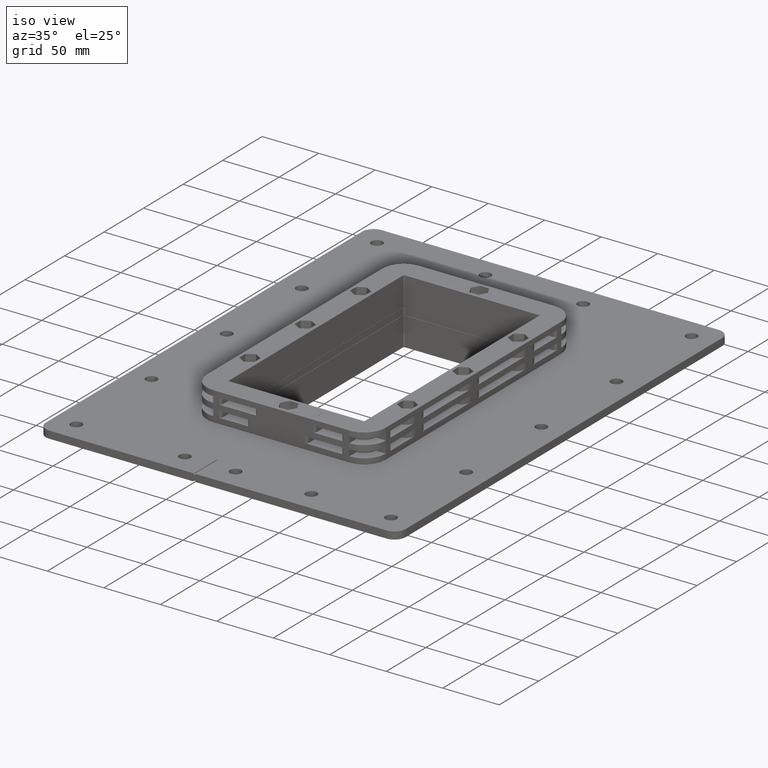
[diagram: clean part render]
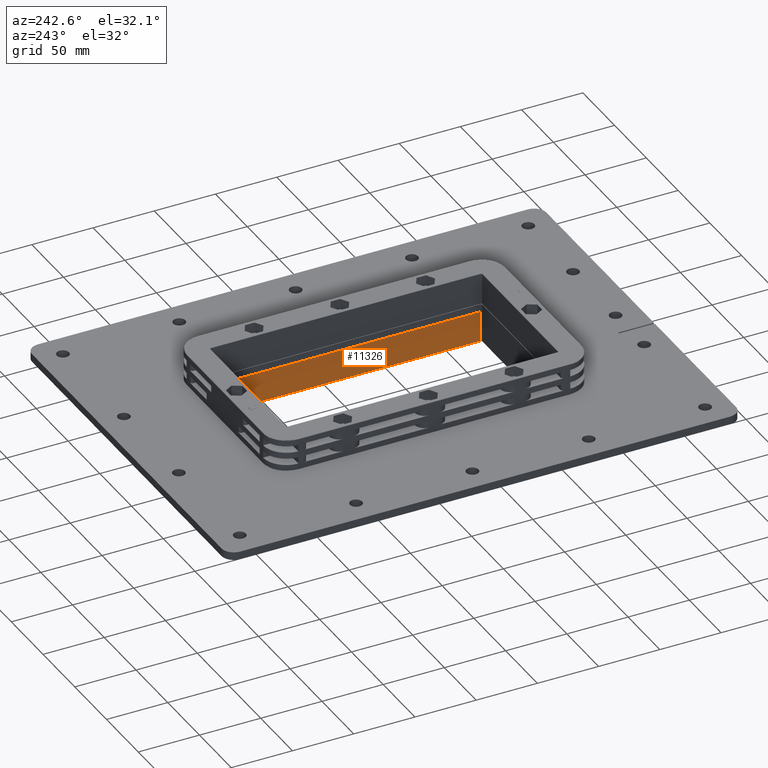
[diagram: tour spotlight — one face highlighted and labeled with its STEP entity id]
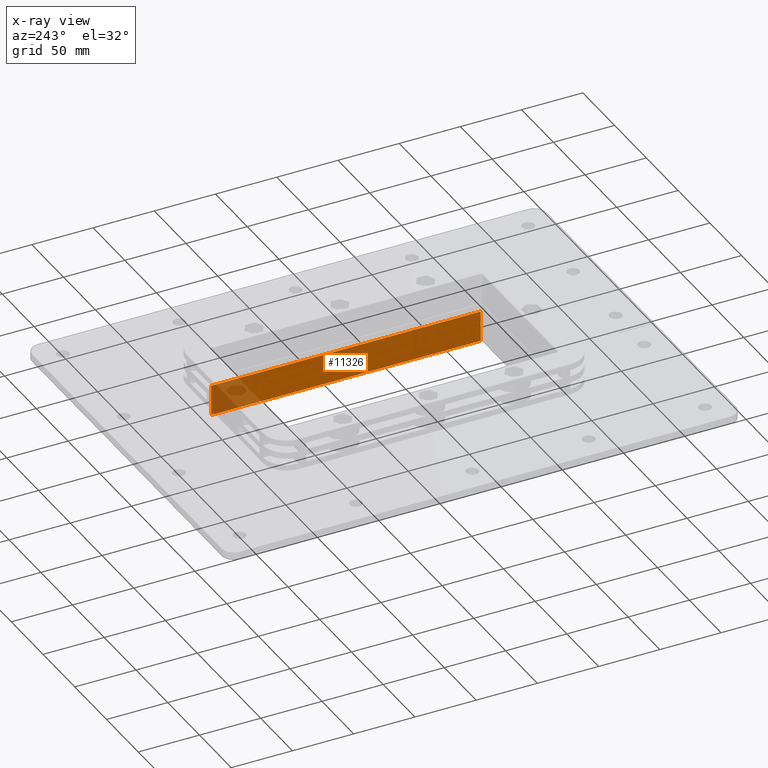
[diagram: x-ray of the same camera — body ghosted, this tour face saturated]
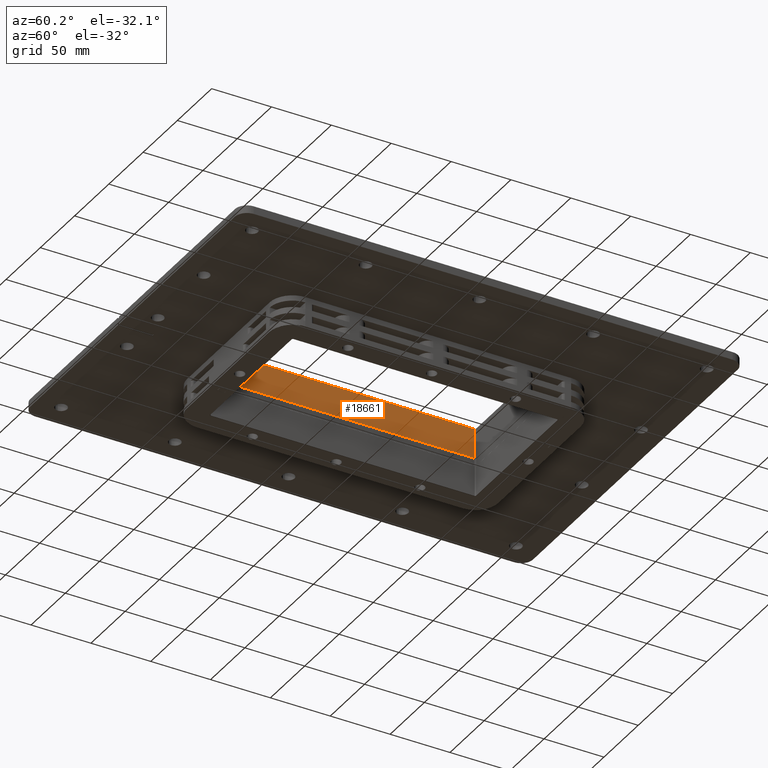
[diagram: tour spotlight — one face highlighted and labeled with its STEP entity id]
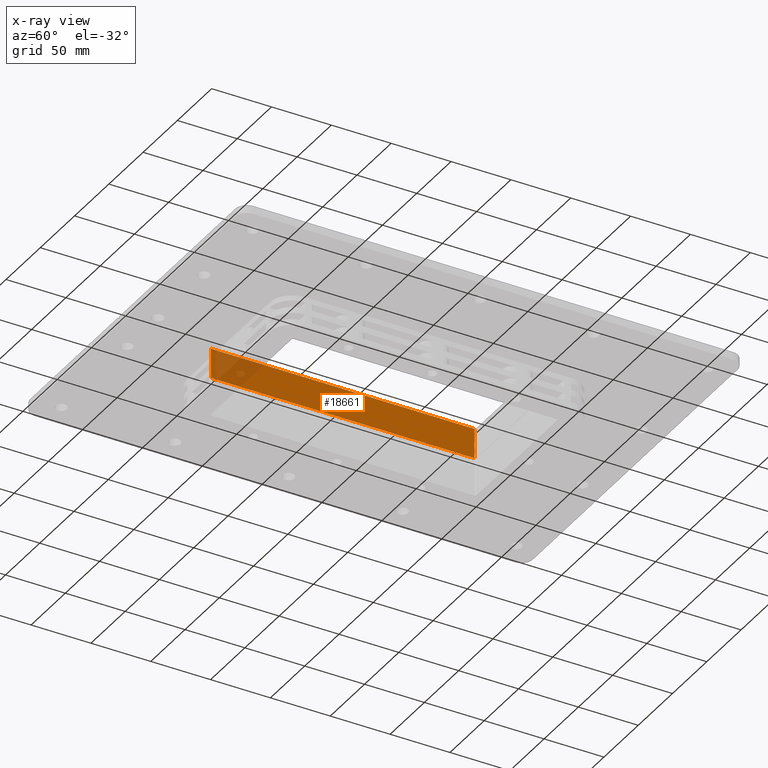
[diagram: x-ray of the same camera — body ghosted, this tour face saturated]
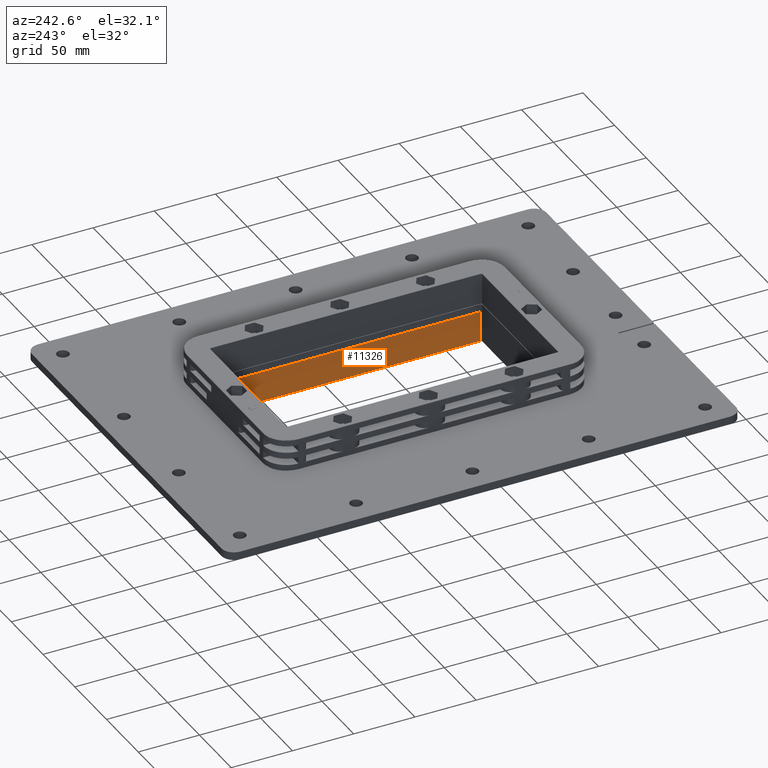
[diagram: tour spotlight — one face highlighted and labeled with its STEP entity id]
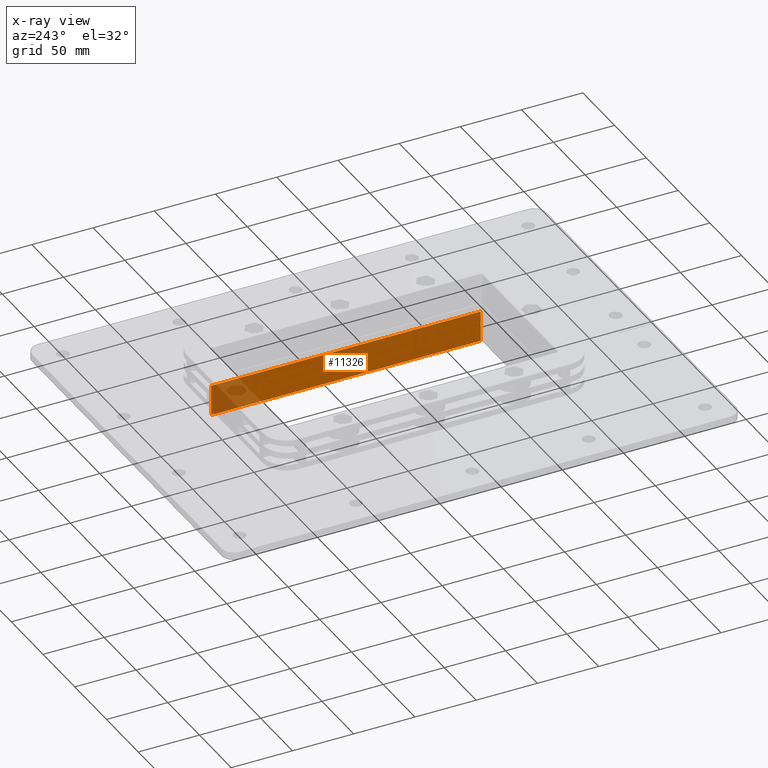
[diagram: x-ray of the same camera — body ghosted, this tour face saturated]
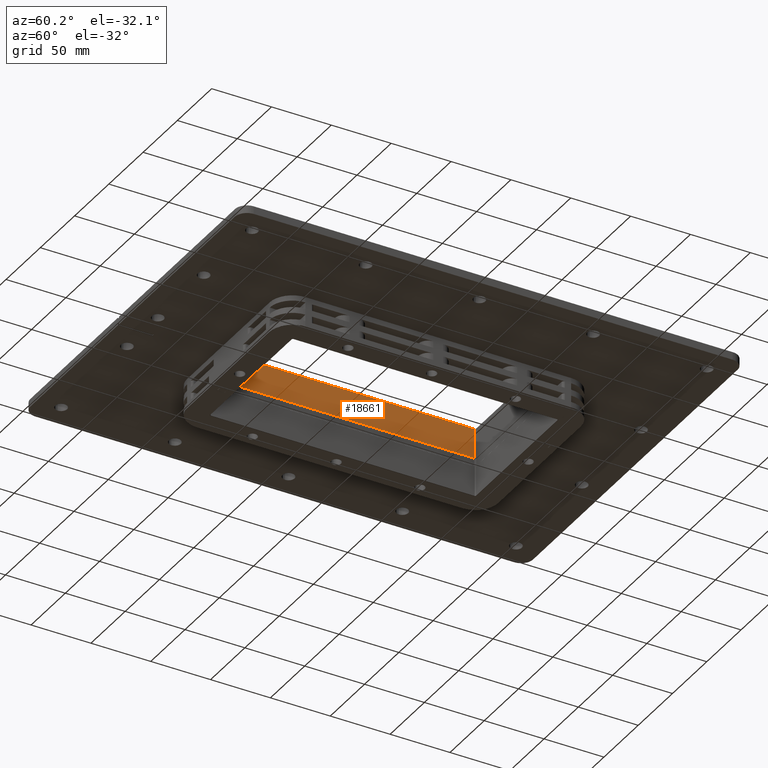
[diagram: tour spotlight — one face highlighted and labeled with its STEP entity id]
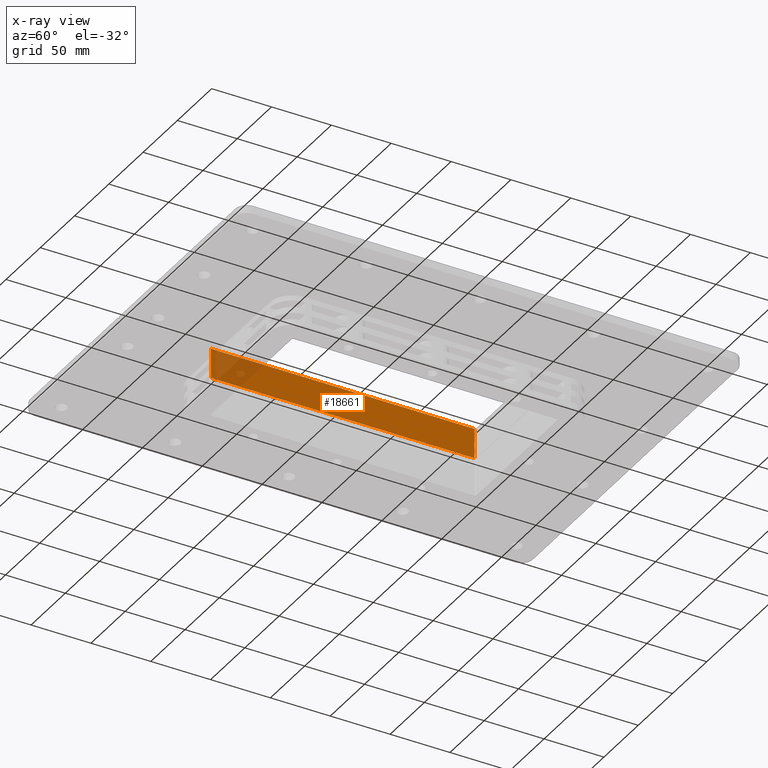
[diagram: x-ray of the same camera — body ghosted, this tour face saturated]
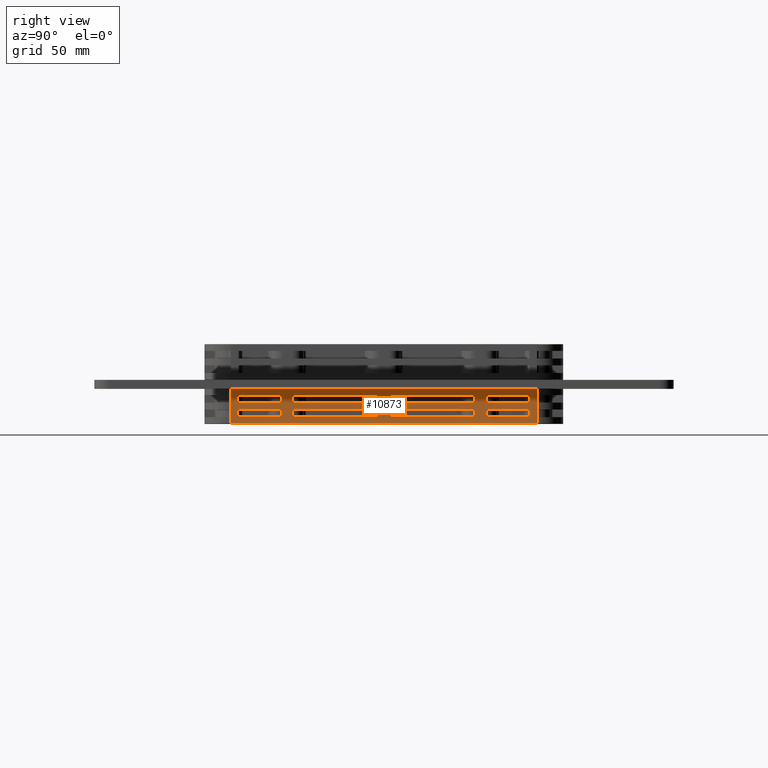
[diagram: tour spotlight — one face highlighted and labeled with its STEP entity id]
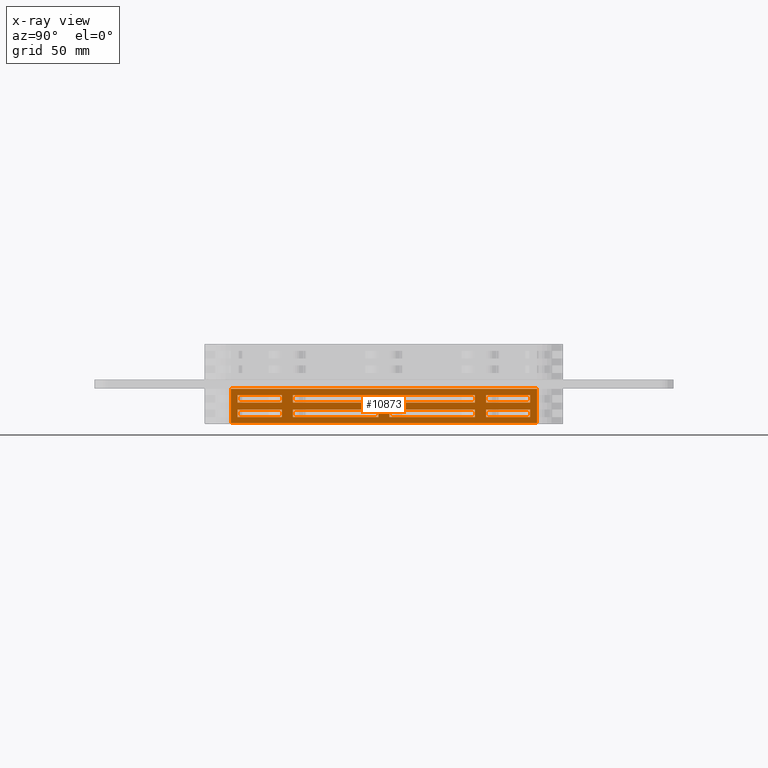
[diagram: x-ray of the same camera — body ghosted, this tour face saturated]
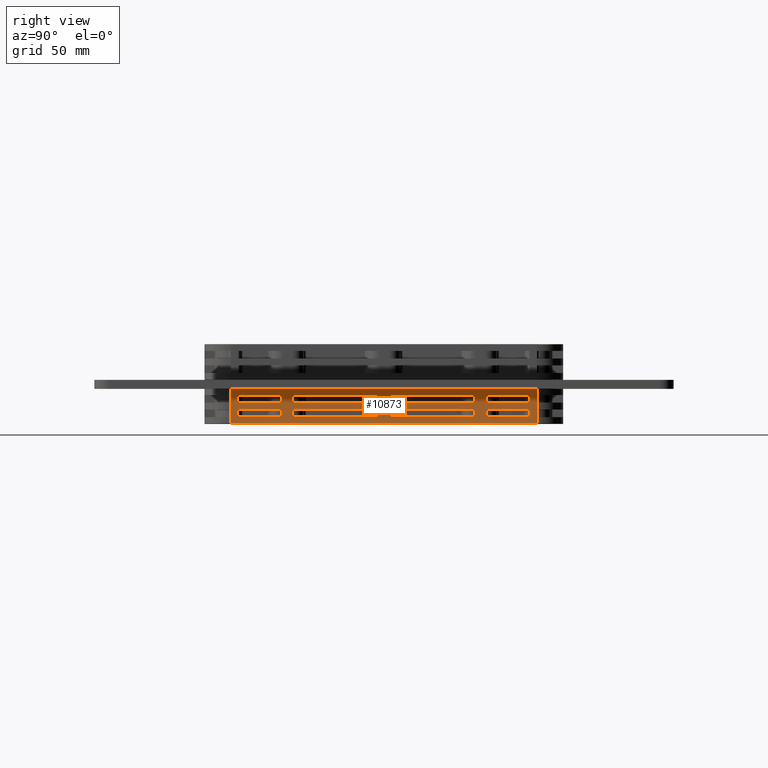
[diagram: tour spotlight — one face highlighted and labeled with its STEP entity id]
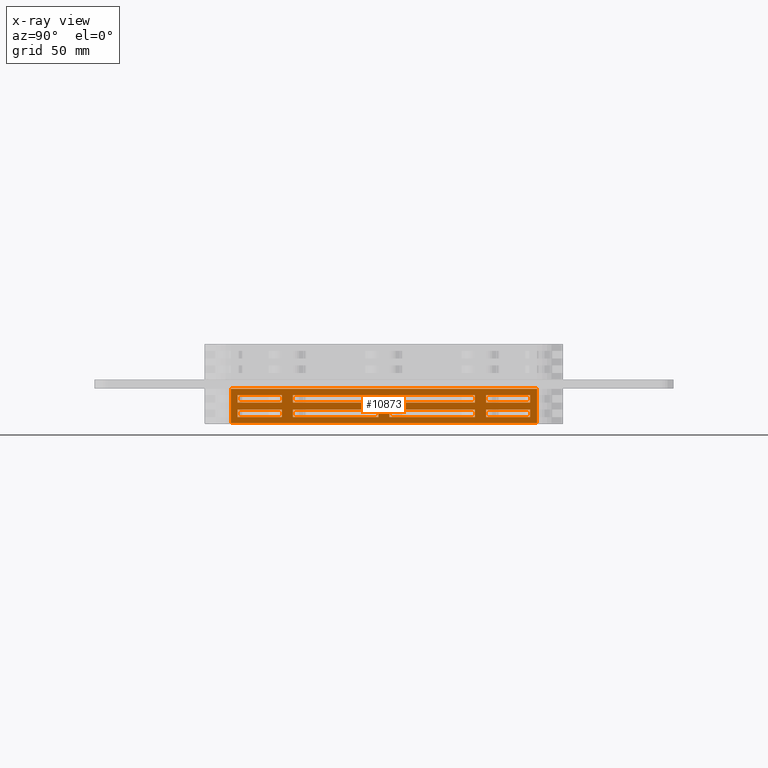
[diagram: x-ray of the same camera — body ghosted, this tour face saturated]
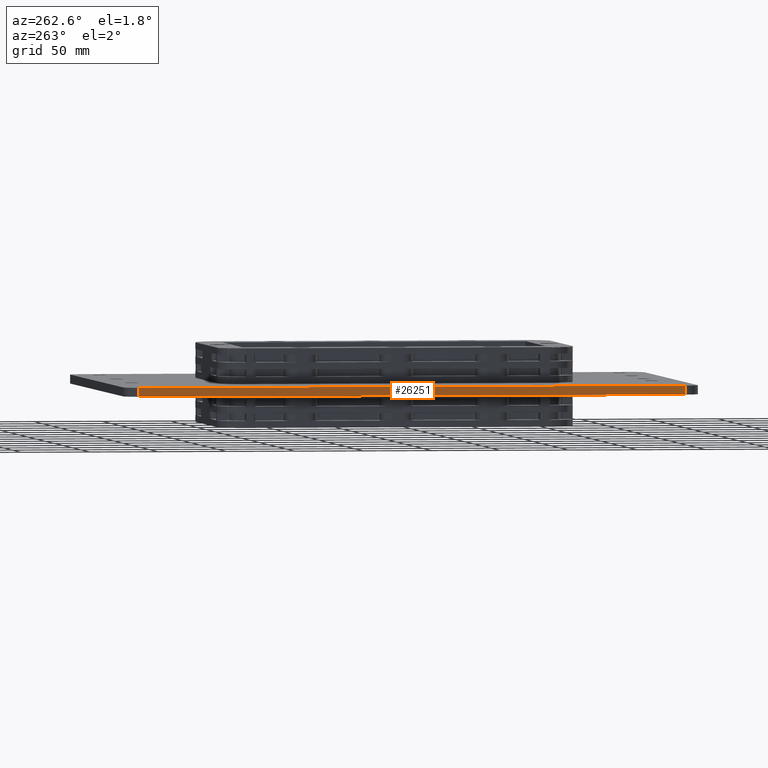
[diagram: tour spotlight — one face highlighted and labeled with its STEP entity id]
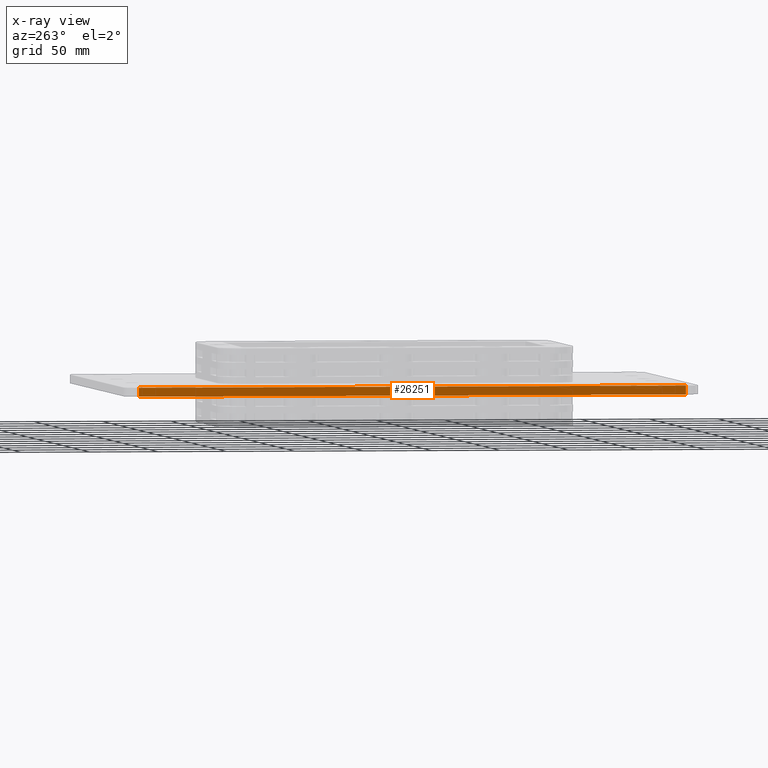
[diagram: x-ray of the same camera — body ghosted, this tour face saturated]
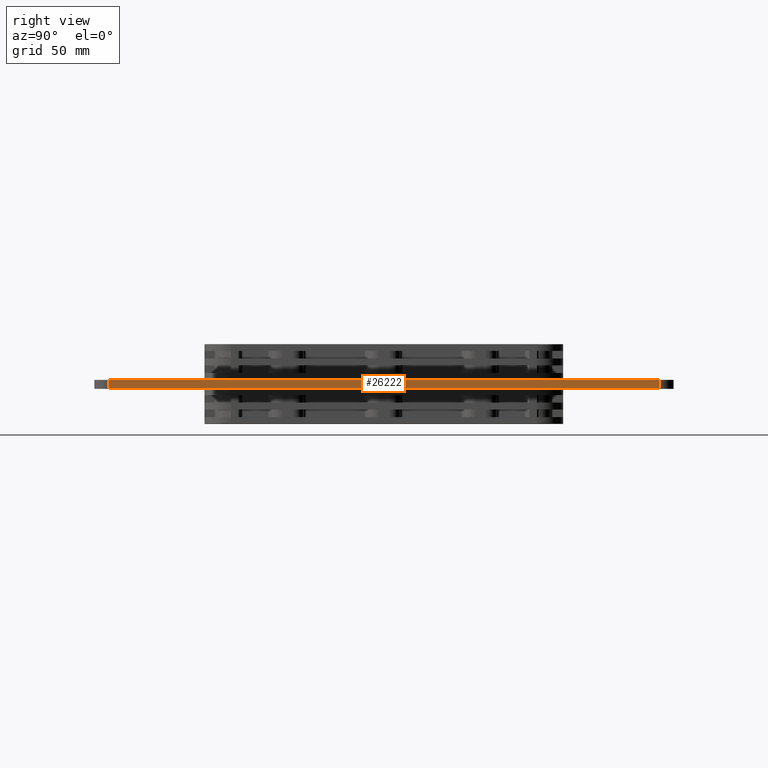
[diagram: tour spotlight — one face highlighted and labeled with its STEP entity id]
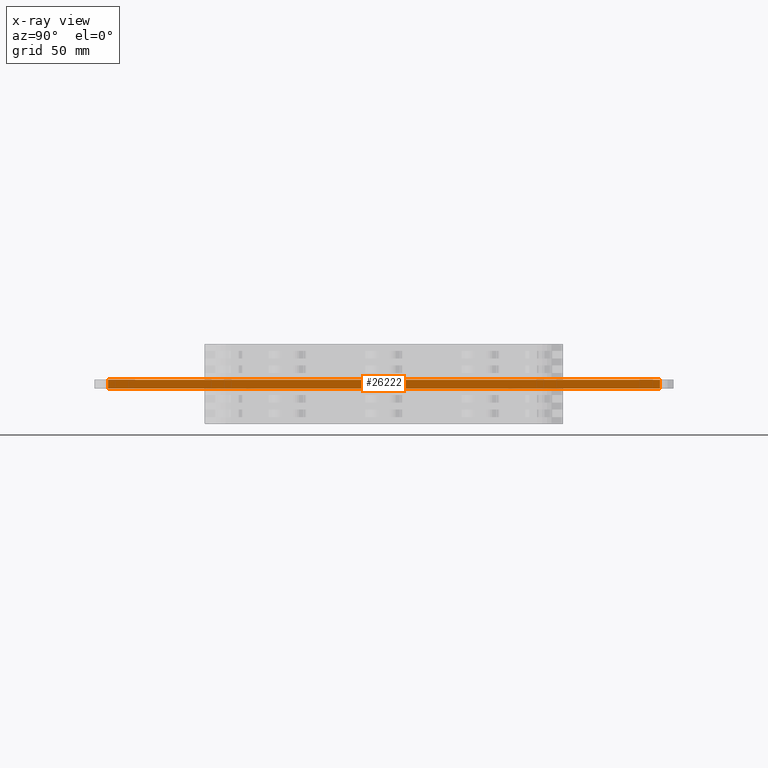
[diagram: x-ray of the same camera — body ghosted, this tour face saturated]
A machine part: a face-by-face anatomy tour. The part has 1458 B-rep faces; the first image is the clean iso view, then the 8 largest visible faces are spotlighted one at a time (largest first), each with its STEP entity span.

Face 1 — auxiliary view, entity #11326. An x-ray twin of the same camera follows (body ghosted, this face saturated) — the face is partly hidden behind the body. In plain terms, the highlighted planar face has unit normal (-1, 0, 0).
Definition (entity closure, byte-faithful):
#7182=CARTESIAN_POINT('',(328.810808067202570,278.936636017474140,-7.604976605923328));
#7183=VERTEX_POINT('',#7182);
#7191=CARTESIAN_POINT('',(328.810808067202570,278.936636017474140,17.395023394076674));
#7192=VERTEX_POINT('',#7191);
#7193=CARTESIAN_POINT('',(328.810808067202570,278.936636017474140,-7.604976605923328));
#7194=DIRECTION('',(0.0,0.0,1.0));
#7195=VECTOR('',#7194,25.0);
#7196=LINE('',#7193,#7195);
#7197=EDGE_CURVE('',#7183,#7192,#7196,.T.);
#10346=CARTESIAN_POINT('',(328.810808067202570,58.936636017474164,-7.604976605923328));
#10347=VERTEX_POINT('',#10346);
#10388=CARTESIAN_POINT('',(328.810808067202570,58.936636017474164,-7.604976605923328));
#10389=DIRECTION('',(0.0,1.0,0.0));
#10390=VECTOR('',#10389,219.999999999999970);
#10391=LINE('',#10388,#10390);
#10392=EDGE_CURVE('',#10347,#7183,#10391,.T.);
#11035=CARTESIAN_POINT('',(328.810808067202570,58.936636017474164,17.395023394076674));
#11036=VERTEX_POINT('',#11035);
#11082=CARTESIAN_POINT('',(328.810808067202570,58.936636017474164,17.395023394076674));
#11083=DIRECTION('',(0.0,0.0,-1.0));
#11084=VECTOR('',#11083,25.0);
#11085=LINE('',#11082,#11084);
#11086=EDGE_CURVE('',#11036,#10347,#11085,.T.);
#11305=CARTESIAN_POINT('',(328.810808067202570,278.936636017474140,17.395023394076674));
#11306=DIRECTION('',(0.0,-1.0,0.0));
#11307=VECTOR('',#11306,219.999999999999970);
#11308=LINE('',#11305,#11307);
#11309=EDGE_CURVE('',#7192,#11036,#11308,.T.);
#11315=CARTESIAN_POINT('',(328.810808067202570,57.936636017474150,-8.104976605923326));
#11316=DIRECTION('',(-1.0,0.0,0.0));
#11317=DIRECTION('',(0.0,0.0,-1.0));
#11318=AXIS2_PLACEMENT_3D('',#11315,#11316,#11317);
#11319=PLANE('',#11318);
#11320=ORIENTED_EDGE('',*,*,#10392,.F.);
#11321=ORIENTED_EDGE('',*,*,#11086,.F.);
#11322=ORIENTED_EDGE('',*,*,#11309,.F.);
#11323=ORIENTED_EDGE('',*,*,#7197,.F.);
#11324=EDGE_LOOP('',(#11320,#11321,#11322,#11323));
#11325=FACE_OUTER_BOUND('',#11324,.T.);
#11326=ADVANCED_FACE('',(#11325),#11319,.T.);

Face 2 — auxiliary view, entity #18661. An x-ray twin of the same camera follows (body ghosted, this face saturated) — the face is partly hidden behind the body. In plain terms, the highlighted planar face has unit normal (1, 0, 0).
Definition (entity closure, byte-faithful):
#2942=CARTESIAN_POINT('',(208.310808067202660,58.936636017474306,-7.604976605923297));
#2943=VERTEX_POINT('',#2942);
#2951=CARTESIAN_POINT('',(208.310808067202660,58.936636017474306,17.395023394076709));
#2952=VERTEX_POINT('',#2951);
#2953=CARTESIAN_POINT('',(208.310808067202660,58.936636017474306,-7.604976605923297));
#2954=DIRECTION('',(0.0,0.0,1.0));
#2955=VECTOR('',#2954,25.000000000000007);
#2956=LINE('',#2953,#2955);
#2957=EDGE_CURVE('',#2943,#2952,#2956,.T.);
#17416=CARTESIAN_POINT('',(208.310808067202660,278.936636017474370,-7.604976605923297));
#17417=VERTEX_POINT('',#17416);
#17446=CARTESIAN_POINT('',(208.310808067202660,278.936636017474370,-7.604976605923297));
#17447=DIRECTION('',(0.0,-1.0,0.0));
#17448=VECTOR('',#17447,220.000000000000060);
#17449=LINE('',#17446,#17448);
#17450=EDGE_CURVE('',#17417,#2943,#17449,.T.);
#18353=CARTESIAN_POINT('',(208.310808067202660,278.936636017474370,17.395023394076709));
#18354=VERTEX_POINT('',#18353);
#18400=CARTESIAN_POINT('',(208.310808067202660,278.936636017474370,17.395023394076709));
#18401=DIRECTION('',(0.0,0.0,-1.0));
#18402=VECTOR('',#18401,25.000000000000007);
#18403=LINE('',#18400,#18402);
#18404=EDGE_CURVE('',#18354,#17417,#18403,.T.);
#18640=CARTESIAN_POINT('',(208.310808067202660,58.936636017474306,17.395023394076709));
#18641=DIRECTION('',(0.0,1.0,0.0));
#18642=VECTOR('',#18641,220.000000000000060);
#18643=LINE('',#18640,#18642);
#18644=EDGE_CURVE('',#2952,#18354,#18643,.T.);
#18650=CARTESIAN_POINT('',(208.310808067202660,279.936636017474310,-8.104976605923294));
#18651=DIRECTION('',(1.0,0.0,0.0));
#18652=DIRECTION('',(0.0,0.0,-1.0));
#18653=AXIS2_PLACEMENT_3D('',#18650,#18651,#18652);
#18654=PLANE('',#18653);
#18655=ORIENTED_EDGE('',*,*,#17450,.F.);
#18656=ORIENTED_EDGE('',*,*,#18404,.F.);
#18657=ORIENTED_EDGE('',*,*,#18644,.F.);
#18658=ORIENTED_EDGE('',*,*,#2957,.F.);
#18659=EDGE_LOOP('',(#18655,#18656,#18657,#18658));
#18660=FACE_OUTER_BOUND('',#18659,.T.);
#18661=ADVANCED_FACE('',(#18660),#18654,.T.);

Face 3 — auxiliary view, entity #11326. An x-ray twin of the same camera follows (body ghosted, this face saturated) — the face is partly hidden behind the body. In plain terms, the highlighted planar face has unit normal (-1, 0, 0).
Definition (entity closure, byte-faithful):
#7182=CARTESIAN_POINT('',(328.810808067202570,278.936636017474140,-7.604976605923328));
#7183=VERTEX_POINT('',#7182);
#7191=CARTESIAN_POINT('',(328.810808067202570,278.936636017474140,17.395023394076674));
#7192=VERTEX_POINT('',#7191);
#7193=CARTESIAN_POINT('',(328.810808067202570,278.936636017474140,-7.604976605923328));
#7194=DIRECTION('',(0.0,0.0,1.0));
#7195=VECTOR('',#7194,25.0);
#7196=LINE('',#7193,#7195);
#7197=EDGE_CURVE('',#7183,#7192,#7196,.T.);
#10346=CARTESIAN_POINT('',(328.810808067202570,58.936636017474164,-7.604976605923328));
#10347=VERTEX_POINT('',#10346);
#10388=CARTESIAN_POINT('',(328.810808067202570,58.936636017474164,-7.604976605923328));
#10389=DIRECTION('',(0.0,1.0,0.0));
#10390=VECTOR('',#10389,219.999999999999970);
#10391=LINE('',#10388,#10390);
#10392=EDGE_CURVE('',#10347,#7183,#10391,.T.);
#11035=CARTESIAN_POINT('',(328.810808067202570,58.936636017474164,17.395023394076674));
#11036=VERTEX_POINT('',#11035);
#11082=CARTESIAN_POINT('',(328.810808067202570,58.936636017474164,17.395023394076674));
#11083=DIRECTION('',(0.0,0.0,-1.0));
#11084=VECTOR('',#11083,25.0);
#11085=LINE('',#11082,#11084);
#11086=EDGE_CURVE('',#11036,#10347,#11085,.T.);
#11305=CARTESIAN_POINT('',(328.810808067202570,278.936636017474140,17.395023394076674));
#11306=DIRECTION('',(0.0,-1.0,0.0));
#11307=VECTOR('',#11306,219.999999999999970);
#11308=LINE('',#11305,#11307);
#11309=EDGE_CURVE('',#7192,#11036,#11308,.T.);
#11315=CARTESIAN_POINT('',(328.810808067202570,57.936636017474150,-8.104976605923326));
#11316=DIRECTION('',(-1.0,0.0,0.0));
#11317=DIRECTION('',(0.0,0.0,-1.0));
#11318=AXIS2_PLACEMENT_3D('',#11315,#11316,#11317);
#11319=PLANE('',#11318);
#11320=ORIENTED_EDGE('',*,*,#10392,.F.);
#11321=ORIENTED_EDGE('',*,*,#11086,.F.);
#11322=ORIENTED_EDGE('',*,*,#11309,.F.);
#11323=ORIENTED_EDGE('',*,*,#7197,.F.);
#11324=EDGE_LOOP('',(#11320,#11321,#11322,#11323));
#11325=FACE_OUTER_BOUND('',#11324,.T.);
#11326=ADVANCED_FACE('',(#11325),#11319,.T.);

Face 4 — auxiliary view, entity #18661. An x-ray twin of the same camera follows (body ghosted, this face saturated) — the face is partly hidden behind the body. In plain terms, the highlighted planar face has unit normal (1, 0, 0).
Definition (entity closure, byte-faithful):
#2942=CARTESIAN_POINT('',(208.310808067202660,58.936636017474306,-7.604976605923297));
#2943=VERTEX_POINT('',#2942);
#2951=CARTESIAN_POINT('',(208.310808067202660,58.936636017474306,17.395023394076709));
#2952=VERTEX_POINT('',#2951);
#2953=CARTESIAN_POINT('',(208.310808067202660,58.936636017474306,-7.604976605923297));
#2954=DIRECTION('',(0.0,0.0,1.0));
#2955=VECTOR('',#2954,25.000000000000007);
#2956=LINE('',#2953,#2955);
#2957=EDGE_CURVE('',#2943,#2952,#2956,.T.);
#17416=CARTESIAN_POINT('',(208.310808067202660,278.936636017474370,-7.604976605923297));
#17417=VERTEX_POINT('',#17416);
#17446=CARTESIAN_POINT('',(208.310808067202660,278.936636017474370,-7.604976605923297));
#17447=DIRECTION('',(0.0,-1.0,0.0));
#17448=VECTOR('',#17447,220.000000000000060);
#17449=LINE('',#17446,#17448);
#17450=EDGE_CURVE('',#17417,#2943,#17449,.T.);
#18353=CARTESIAN_POINT('',(208.310808067202660,278.936636017474370,17.395023394076709));
#18354=VERTEX_POINT('',#18353);
#18400=CARTESIAN_POINT('',(208.310808067202660,278.936636017474370,17.395023394076709));
#18401=DIRECTION('',(0.0,0.0,-1.0));
#18402=VECTOR('',#18401,25.000000000000007);
#18403=LINE('',#18400,#18402);
#18404=EDGE_CURVE('',#18354,#17417,#18403,.T.);
#18640=CARTESIAN_POINT('',(208.310808067202660,58.936636017474306,17.395023394076709));
#18641=DIRECTION('',(0.0,1.0,0.0));
#18642=VECTOR('',#18641,220.000000000000060);
#18643=LINE('',#18640,#18642);
#18644=EDGE_CURVE('',#2952,#18354,#18643,.T.);
#18650=CARTESIAN_POINT('',(208.310808067202660,279.936636017474310,-8.104976605923294));
#18651=DIRECTION('',(1.0,0.0,0.0));
#18652=DIRECTION('',(0.0,0.0,-1.0));
#18653=AXIS2_PLACEMENT_3D('',#18650,#18651,#18652);
#18654=PLANE('',#18653);
#18655=ORIENTED_EDGE('',*,*,#17450,.F.);
#18656=ORIENTED_EDGE('',*,*,#18404,.F.);
#18657=ORIENTED_EDGE('',*,*,#18644,.F.);
#18658=ORIENTED_EDGE('',*,*,#2957,.F.);
#18659=EDGE_LOOP('',(#18655,#18656,#18657,#18658));
#18660=FACE_OUTER_BOUND('',#18659,.T.);
#18661=ADVANCED_FACE('',(#18660),#18654,.T.);

Face 5 — right view, entity #10873. An x-ray twin of the same camera follows (body ghosted, this face saturated) — the face is partly hidden behind the body. In plain terms, the highlighted planar face has unit normal (1, 0, 0).
Definition (entity closure, byte-faithful):
#4538=CARTESIAN_POINT('',(347.810808067202520,57.936636017474150,2.395023394076674));
#4539=VERTEX_POINT('',#4538);
#4547=CARTESIAN_POINT('',(347.810808067202520,57.936636017474150,7.395023394076676));
#4548=VERTEX_POINT('',#4547);
#4549=CARTESIAN_POINT('',(347.810808067202520,57.936636017474150,2.395023394076674));
#4550=DIRECTION('',(0.0,0.0,1.0));
#4551=VECTOR('',#4550,5.000000000000003);
#4552=LINE('',#4549,#4551);
#4553=EDGE_CURVE('',#4539,#4548,#4552,.T.);
#4790=CARTESIAN_POINT('',(347.810808067202520,57.936636017474150,12.895023394076674));
#4791=VERTEX_POINT('',#4790);
#4799=CARTESIAN_POINT('',(347.810808067202520,57.936636017474150,17.395023394076674));
#4800=VERTEX_POINT('',#4799);
#4801=CARTESIAN_POINT('',(347.810808067202520,57.936636017474150,12.895023394076674));
#4802=DIRECTION('',(0.0,0.0,1.0));
#4803=VECTOR('',#4802,4.500000000000000);
#4804=LINE('',#4801,#4803);
#4805=EDGE_CURVE('',#4791,#4800,#4804,.T.);
#7308=CARTESIAN_POINT('',(347.810808067202520,57.936636017474150,-7.604976605923328));
#7309=VERTEX_POINT('',#7308);
#7317=CARTESIAN_POINT('',(347.810808067202520,57.936636017474150,-3.104976605923326));
#7318=VERTEX_POINT('',#7317);
#7319=CARTESIAN_POINT('',(347.810808067202520,57.936636017474150,-7.604976605923328));
#7320=DIRECTION('',(0.0,0.0,1.0));
#7321=VECTOR('',#7320,4.500000000000002);
#7322=LINE('',#7319,#7321);
#7323=EDGE_CURVE('',#7309,#7318,#7322,.T.);
#9719=CARTESIAN_POINT('',(347.810808067202520,57.936636017474150,-3.104976605923326));
#9720=DIRECTION('',(0.0,0.0,1.0));
#9721=VECTOR('',#9720,5.500000000000000);
#9722=LINE('',#9719,#9721);
#9723=EDGE_CURVE('',#7318,#4539,#9722,.T.);
#10006=CARTESIAN_POINT('',(347.810808067202520,279.936636017474200,7.395023394076674));
#10007=VERTEX_POINT('',#10006);
#10053=CARTESIAN_POINT('',(347.810808067202520,279.936636017474200,12.895023394076674));
#10054=VERTEX_POINT('',#10053);
#10061=CARTESIAN_POINT('',(347.810808067202520,279.936636017474200,12.895023394076674));
#10062=DIRECTION('',(0.0,0.0,-1.0));
#10063=VECTOR('',#10062,5.500000000000000);
#10064=LINE('',#10061,#10063);
#10065=EDGE_CURVE('',#10054,#10007,#10064,.T.);
#10111=CARTESIAN_POINT('',(347.810808067202520,279.936636017474200,-3.104976605923326));
#10112=VERTEX_POINT('',#10111);
#10158=CARTESIAN_POINT('',(347.810808067202520,279.936636017474200,2.395023394076674));
#10159=VERTEX_POINT('',#10158);
#10166=CARTESIAN_POINT('',(347.810808067202520,279.936636017474200,2.395023394076674));
#10167=DIRECTION('',(0.0,0.0,-1.0));
#10168=VECTOR('',#10167,5.500000000000000);
#10169=LINE('',#10166,#10168);
#10170=EDGE_CURVE('',#10159,#10112,#10169,.T.);
#10486=CARTESIAN_POINT('',(347.810808067202520,279.936636017474200,-7.604976605923328));
#10487=VERTEX_POINT('',#10486);
#10495=CARTESIAN_POINT('',(347.810808067202520,279.936636017474200,-7.604976605923328));
#10496=DIRECTION('',(0.0,-1.0,0.0));
#10497=VECTOR('',#10496,222.000000000000060);
#10498=LINE('',#10495,#10497);
#10499=EDGE_CURVE('',#10487,#7309,#10498,.T.);
#10555=CARTESIAN_POINT('',(347.810808067202520,298.936636017474140,-8.104976605923326));
#10556=DIRECTION('',(1.0,0.0,0.0));
#10557=DIRECTION('',(0.0,0.0,1.0));
#10558=AXIS2_PLACEMENT_3D('',#10555,#10556,#10557);
#10559=PLANE('',#10558);
#10560=ORIENTED_EDGE('',*,*,#10499,.F.);
#10561=CARTESIAN_POINT('',(347.810808067202520,279.936636017474200,-3.104976605923326));
#10562=DIRECTION('',(0.0,0.0,-1.0));
#10563=VECTOR('',#10562,4.500000000000002);
#10564=LINE('',#10561,#10563);
#10565=EDGE_CURVE('',#10112,#10487,#10564,.T.);
#10566=ORIENTED_EDGE('',*,*,#10565,.F.);
#10567=ORIENTED_EDGE('',*,*,#10170,.F.);
#10568=CARTESIAN_POINT('',(347.810808067202520,279.936636017474200,7.395023394076674));
#10569=DIRECTION('',(0.0,0.0,-1.0));
#10570=VECTOR('',#10569,5.0);
#10571=LINE('',#10568,#10570);
#10572=EDGE_CURVE('',#10007,#10159,#10571,.T.);
#10573=ORIENTED_EDGE('',*,*,#10572,.F.);
#10574=ORIENTED_EDGE('',*,*,#10065,.F.);
#10575=CARTESIAN_POINT('',(347.810808067202520,279.936636017474200,17.395023394076674));
#10576=VERTEX_POINT('',#10575);
#10577=CARTESIAN_POINT('',(347.810808067202520,279.936636017474200,17.395023394076674));
#10578=DIRECTION('',(0.0,0.0,-1.0));
#10579=VECTOR('',#10578,4.500000000000000);
#10580=LINE('',#10577,#10579);
#10581=EDGE_CURVE('',#10576,#10054,#10580,.T.);
#10582=ORIENTED_EDGE('',*,*,#10581,.F.);
#10583=CARTESIAN_POINT('',(347.810808067202520,57.936636017474150,17.395023394076674));
#10584=DIRECTION('',(0.0,1.0,0.0));
#10585=VECTOR('',#10584,222.000000000000060);
#10586=LINE('',#10583,#10585);
#10587=EDGE_CURVE('',#4800,#10576,#10586,.T.);
#10588=ORIENTED_EDGE('',*,*,#10587,.F.);
#10589=ORIENTED_EDGE('',*,*,#4805,.F.);
#10590=CARTESIAN_POINT('',(347.810808067202520,57.936636017474150,7.395023394076676));
#10591=DIRECTION('',(0.0,0.0,1.0));
#10592=VECTOR('',#10591,5.499999999999997);
#10593=LINE('',#10590,#10592);
#10594=EDGE_CURVE('',#4548,#4791,#10593,.T.);
#10595=ORIENTED_EDGE('',*,*,#10594,.F.);
#10596=ORIENTED_EDGE('',*,*,#4553,.F.);
#10597=ORIENTED_EDGE('',*,*,#9723,.F.);
#10598=ORIENTED_EDGE('',*,*,#7323,.F.);
#10599=EDGE_LOOP('',(#10560,#10566,#10567,#10573,#10574,#10582,#10588,#10589,#10595,#10596,#10597,#10598));
#10600=FACE_OUTER_BOUND('',#10599,.T.);
#10601=CARTESIAN_POINT('',(347.810808067202520,102.936636017474140,7.395023394076671));
#10602=VERTEX_POINT('',#10601);
#10603=CARTESIAN_POINT('',(347.810808067202520,164.936636017474170,7.395023394076671));
#10604=VERTEX_POINT('',#10603);
#10605=CARTESIAN_POINT('',(347.810808067202520,102.936636017474140,7.395023394076671));
#10606=DIRECTION('',(0.0,1.0,0.0));
#10607=VECTOR('',#10606,62.000000000000028);
#10608=LINE('',#10605,#10607);
#10609=EDGE_CURVE('',#10602,#10604,#10608,.T.);
#10610=ORIENTED_EDGE('',*,*,#10609,.F.);
#10611=CARTESIAN_POINT('',(347.810808067202520,102.936636017474140,12.895023394076674));
#10612=VERTEX_POINT('',#10611);
#10613=CARTESIAN_POINT('',(347.810808067202520,102.936636017474140,12.895023394076674));
#10614=DIRECTION('',(0.0,0.0,-1.0));
#10615=VECTOR('',#10614,5.500000000000003);
#10616=LINE('',#10613,#10615);
#10617=EDGE_CURVE('',#10612,#10602,#10616,.T.);
#10618=ORIENTED_EDGE('',*,*,#10617,.F.);
#10619=CARTESIAN_POINT('',(347.810808067202520,164.936636017474170,12.895023394076681));
#10620=VERTEX_POINT('',#10619);
#10621=CARTESIAN_POINT('',(347.810808067202520,102.936636017474140,12.895023394076674));
#10622=DIRECTION('',(0.0,1.0,0.0));
#10623=VECTOR('',#10622,62.000000000000028);
#10624=LINE('',#10621,#10623);
#10625=EDGE_CURVE('',#10612,#10620,#10624,.T.);
#10626=ORIENTED_EDGE('',*,*,#10625,.T.);
#10627=CARTESIAN_POINT('',(347.810808067202520,164.936636017474170,7.395023394076671));
#10628=DIRECTION('',(0.0,0.0,1.0));
#10629=VECTOR('',#10628,5.500000000000010);
#10630=LINE('',#10627,#10629);
#10631=EDGE_CURVE('',#10604,#10620,#10630,.T.);
#10632=ORIENTED_EDGE('',*,*,#10631,.F.);
#10633=EDGE_LOOP('',(#10610,#10618,#10626,#10632));
#10634=FACE_BOUND('',#10633,.T.);
#10635=CARTESIAN_POINT('',(347.810808067202520,102.936636017474140,-3.104976605923331));
#10636=VERTEX_POINT('',#10635);
#10637=CARTESIAN_POINT('',(347.810808067202520,164.936636017474170,-3.104976605923331));
#10638=VERTEX_POINT('',#10637);
#10639=CARTESIAN_POINT('',(347.810808067202520,102.936636017474140,-3.104976605923331));
#10640=DIRECTION('',(0.0,1.0,0.0));
#10641=VECTOR('',#10640,62.000000000000028);
#10642=LINE('',#10639,#10641);
#10643=EDGE_CURVE('',#10636,#10638,#10642,.T.);
#10644=ORIENTED_EDGE('',*,*,#10643,.F.);
#10645=CARTESIAN_POINT('',(347.810808067202520,102.936636017474140,2.395023394076670));
#10646=VERTEX_POINT('',#10645);
#10647=CARTESIAN_POINT('',(347.810808067202520,102.936636017474140,2.395023394076670));
#10648=DIRECTION('',(0.0,0.0,-1.0));
#10649=VECTOR('',#10648,5.500000000000001);
#10650=LINE('',#10647,#10649);
#10651=EDGE_CURVE('',#10646,#10636,#10650,.T.);
#10652=ORIENTED_EDGE('',*,*,#10651,.F.);
#10653=CARTESIAN_POINT('',(347.810808067202520,164.936636017474170,2.395023394076679));
#10654=VERTEX_POINT('',#10653);
#10655=CARTESIAN_POINT('',(347.810808067202520,102.936636017474140,2.395023394076670));
#10656=DIRECTION('',(0.0,1.0,0.0));
#10657=VECTOR('',#10656,62.000000000000028);
#10658=LINE('',#10655,#10657);
#10659=EDGE_CURVE('',#10646,#10654,#10658,.T.);
#10660=ORIENTED_EDGE('',*,*,#10659,.T.);
#10661=CARTESIAN_POINT('',(347.810808067202520,164.936636017474170,-3.104976605923331));
#10662=DIRECTION('',(0.0,0.0,1.0));
#10663=VECTOR('',#10662,5.500000000000010);
#10664=LINE('',#10661,#10663);
#10665=EDGE_CURVE('',#10638,#10654,#10664,.T.);
#10666=ORIENTED_EDGE('',*,*,#10665,.F.);
#10667=EDGE_LOOP('',(#10644,#10652,#10660,#10666));
#10668=FACE_BOUND('',#10667,.T.);
#10669=CARTESIAN_POINT('',(347.810808067202520,172.936636017474140,7.395023394076671));
#10670=VERTEX_POINT('',#10669);
#10671=CARTESIAN_POINT('',(347.810808067202520,234.936636017474170,7.395023394076671));
#10672=VERTEX_POINT('',#10671);
#10673=CARTESIAN_POINT('',(347.810808067202520,172.936636017474140,7.395023394076671));
#10674=DIRECTION('',(0.0,1.0,0.0));
#10675=VECTOR('',#10674,62.000000000000028);
#10676=LINE('',#10673,#10675);
#10677=EDGE_CURVE('',#10670,#10672,#10676,.T.);
#10678=ORIENTED_EDGE('',*,*,#10677,.F.);
#10679=CARTESIAN_POINT('',(347.810808067202520,172.936636017474140,12.895023394076670));
#10680=VERTEX_POINT('',#10679);
#10681=CARTESIAN_POINT('',(347.810808067202520,172.936636017474140,12.895023394076670));
#10682=DIRECTION('',(0.0,0.0,-1.0));
#10683=VECTOR('',#10682,5.499999999999999);
#10684=LINE('',#10681,#10683);
#10685=EDGE_CURVE('',#10680,#10670,#10684,.T.);
#10686=ORIENTED_EDGE('',*,*,#10685,.F.);
#10687=CARTESIAN_POINT('',(347.810808067202520,234.936636017474170,12.895023394076679));
#10688=VERTEX_POINT('',#10687);
#10689=CARTESIAN_POINT('',(347.810808067202520,172.936636017474140,12.895023394076670));
#10690=DIRECTION('',(0.0,1.0,0.0));
#10691=VECTOR('',#10690,62.000000000000028);
#10692=LINE('',#10689,#10691);
#10693=EDGE_CURVE('',#10680,#10688,#10692,.T.);
#10694=ORIENTED_EDGE('',*,*,#10693,.T.);
#10695=CARTESIAN_POINT('',(347.810808067202520,234.936636017474170,7.395023394076671));
#10696=DIRECTION('',(0.0,0.0,1.0));
#10697=VECTOR('',#10696,5.500000000000008);
#10698=LINE('',#10695,#10697);
#10699=EDGE_CURVE('',#10672,#10688,#10698,.T.);
#10700=ORIENTED_EDGE('',*,*,#10699,.F.);
#10701=EDGE_LOOP('',(#10678,#10686,#10694,#10700));
#10702=FACE_BOUND('',#10701,.T.);
#10703=CARTESIAN_POINT('',(347.810808067202520,172.936636017474140,-3.104976605923331));
#10704=VERTEX_POINT('',#10703);
#10705=CARTESIAN_POINT('',(347.810808067202520,234.936636017474170,-3.104976605923331));
#10706=VERTEX_POINT('',#10705);
#10707=CARTESIAN_POINT('',(347.810808067202520,172.936636017474140,-3.104976605923331));
#10708=DIRECTION('',(0.0,1.0,0.0));
#10709=VECTOR('',#10708,62.000000000000028);
#10710=LINE('',#10707,#10709);
#10711=EDGE_CURVE('',#10704,#10706,#10710,.T.);
#10712=ORIENTED_EDGE('',*,*,#10711,.F.);
#10713=CARTESIAN_POINT('',(347.810808067202520,172.936636017474140,2.395023394076670));
#10714=VERTEX_POINT('',#10713);
#10715=CARTESIAN_POINT('',(347.810808067202520,172.936636017474140,2.395023394076670));
#10716=DIRECTION('',(0.0,0.0,-1.0));
#10717=VECTOR('',#10716,5.500000000000001);
#10718=LINE('',#10715,#10717);
#10719=EDGE_CURVE('',#10714,#10704,#10718,.T.);
#10720=ORIENTED_EDGE('',*,*,#10719,.F.);
#10721=CARTESIAN_POINT('',(347.810808067202520,234.936636017474170,2.395023394076677));
#10722=VERTEX_POINT('',#10721);
#10723=CARTESIAN_POINT('',(347.810808067202520,172.936636017474140,2.395023394076670));
#10724=DIRECTION('',(0.0,1.0,0.0));
#10725=VECTOR('',#10724,62.000000000000028);
#10726=LINE('',#10723,#10725);
#10727=EDGE_CURVE('',#10714,#10722,#10726,.T.);
#10728=ORIENTED_EDGE('',*,*,#10727,.T.);
#10729=CARTESIAN_POINT('',(347.810808067202520,234.936636017474170,-3.104976605923331));
#10730=DIRECTION('',(0.0,0.0,1.0));
#10731=VECTOR('',#10730,5.500000000000007);
#10732=LINE('',#10729,#10731);
#10733=EDGE_CURVE('',#10706,#10722,#10732,.T.);
#10734=ORIENTED_EDGE('',*,*,#10733,.F.);
#10735=EDGE_LOOP('',(#10712,#10720,#10728,#10734));
#10736=FACE_BOUND('',#10735,.T.);
#10737=CARTESIAN_POINT('',(347.810808067202520,62.936636017474150,12.895023394076674));
#10738=VERTEX_POINT('',#10737);
#10739=CARTESIAN_POINT('',(347.810808067202520,94.936636017474157,12.895023394076679));
#10740=VERTEX_POINT('',#10739);
#10741=CARTESIAN_POINT('',(347.810808067202520,62.936636017474150,12.895023394076674));
#10742=DIRECTION('',(0.0,1.0,0.0));
#10743=VECTOR('',#10742,32.000000000000007);
#10744=LINE('',#10741,#10743);
#10745=EDGE_CURVE('',#10738,#10740,#10744,.T.);
#10746=ORIENTED_EDGE('',*,*,#10745,.T.);
#10747=CARTESIAN_POINT('',(347.810808067202520,94.936636017474157,7.395023394076674));
#10748=VERTEX_POINT('',#10747);
#10749=CARTESIAN_POINT('',(347.810808067202520,94.936636017474157,7.395023394076674));
#10750=DIRECTION('',(0.0,0.0,1.0));
#10751=VECTOR('',#10750,5.500000000000005);
#10752=LINE('',#10749,#10751);
#10753=EDGE_CURVE('',#10748,#10740,#10752,.T.);
#10754=ORIENTED_EDGE('',*,*,#10753,.F.);
#10755=CARTESIAN_POINT('',(347.810808067202520,62.936636017474150,7.395023394076674));
#10756=VERTEX_POINT('',#10755);
#10757=CARTESIAN_POINT('',(347.810808067202520,62.936636017474150,7.395023394076674));
#10758=DIRECTION('',(0.0,1.0,0.0));
#10759=VECTOR('',#10758,32.000000000000007);
#10760=LINE('',#10757,#10759);
#10761=EDGE_CURVE('',#10756,#10748,#10760,.T.);
#10762=ORIENTED_EDGE('',*,*,#10761,.F.);
#10763=CARTESIAN_POINT('',(347.810808067202520,62.936636017474150,12.895023394076674));
#10764=DIRECTION('',(0.0,0.0,-1.0));
#10765=VECTOR('',#10764,5.500000000000000);
#10766=LINE('',#10763,#10765);
#10767=EDGE_CURVE('',#10738,#10756,#10766,.T.);
#10768=ORIENTED_EDGE('',*,*,#10767,.F.);
#10769=EDGE_LOOP('',(#10746,#10754,#10762,#10768));
#10770=FACE_BOUND('',#10769,.T.);
#10771=CARTESIAN_POINT('',(347.810808067202520,62.936636017474150,2.395023394076672));
#10772=VERTEX_POINT('',#10771);
#10773=CARTESIAN_POINT('',(347.810808067202520,94.936636017474157,2.395023394076675));
#10774=VERTEX_POINT('',#10773);
#10775=CARTESIAN_POINT('',(347.810808067202520,62.936636017474150,2.395023394076672));
#10776=DIRECTION('',(0.0,1.0,0.0));
#10777=VECTOR('',#10776,32.000000000000007);
#10778=LINE('',#10775,#10777);
#10779=EDGE_CURVE('',#10772,#10774,#10778,.T.);
#10780=ORIENTED_EDGE('',*,*,#10779,.T.);
#10781=CARTESIAN_POINT('',(347.810808067202520,94.936636017474157,-3.104976605923326));
#10782=VERTEX_POINT('',#10781);
#10783=CARTESIAN_POINT('',(347.810808067202520,94.936636017474157,-3.104976605923326));
#10784=DIRECTION('',(0.0,0.0,1.0));
#10785=VECTOR('',#10784,5.500000000000002);
#10786=LINE('',#10783,#10785);
#10787=EDGE_CURVE('',#10782,#10774,#10786,.T.);
#10788=ORIENTED_EDGE('',*,*,#10787,.F.);
#10789=CARTESIAN_POINT('',(347.810808067202520,62.936636017474150,-3.104976605923326));
#10790=VERTEX_POINT('',#10789);
#10791=CARTESIAN_POINT('',(347.810808067202520,62.936636017474150,-3.104976605923326));
#10792=DIRECTION('',(0.0,1.0,0.0));
#10793=VECTOR('',#10792,32.000000000000007);
#10794=LINE('',#10791,#10793);
#10795=EDGE_CURVE('',#10790,#10782,#10794,.T.);
#10796=ORIENTED_EDGE('',*,*,#10795,.F.);
#10797=CARTESIAN_POINT('',(347.810808067202520,62.936636017474150,2.395023394076672));
#10798=DIRECTION('',(0.0,0.0,-1.0));
#10799=VECTOR('',#10798,5.499999999999998);
#10800=LINE('',#10797,#10799);
#10801=EDGE_CURVE('',#10772,#10790,#10800,.T.);
#10802=ORIENTED_EDGE('',*,*,#10801,.F.);
#10803=EDGE_LOOP('',(#10780,#10788,#10796,#10802));
#10804=FACE_BOUND('',#10803,.T.);
#10805=CARTESIAN_POINT('',(347.810808067202520,242.936636017474230,-3.104976605923326));
#10806=VERTEX_POINT('',#10805);
#10807=CARTESIAN_POINT('',(347.810808067202520,274.936636017474200,-3.104976605923326));
#10808=VERTEX_POINT('',#10807);
#10809=CARTESIAN_POINT('',(347.810808067202520,242.936636017474230,-3.104976605923326));
#10810=DIRECTION('',(0.0,1.0,0.0));
#10811=VECTOR('',#10810,31.999999999999972);
#10812=LINE('',#10809,#10811);
#10813=EDGE_CURVE('',#10806,#10808,#10812,.T.);
#10814=ORIENTED_EDGE('',*,*,#10813,.F.);
#10815=CARTESIAN_POINT('',(347.810808067202520,242.936636017474230,2.395023394076670));
#10816=VERTEX_POINT('',#10815);
#10817=CARTESIAN_POINT('',(347.810808067202520,242.936636017474230,2.395023394076670));
#10818=DIRECTION('',(0.0,0.0,-1.0));
#10819=VECTOR('',#10818,5.499999999999996);
#10820=LINE('',#10817,#10819);
#10821=EDGE_CURVE('',#10816,#10806,#10820,.T.);
#10822=ORIENTED_EDGE('',*,*,#10821,.F.);
#10823=CARTESIAN_POINT('',(347.810808067202520,274.936636017474200,2.395023394076674));
#10824=VERTEX_POINT('',#10823);
#10825=CARTESIAN_POINT('',(347.810808067202520,242.936636017474230,2.395023394076670));
#10826=DIRECTION('',(0.0,1.0,0.0));
#10827=VECTOR('',#10826,31.999999999999972);
#10828=LINE('',#10825,#10827);
#10829=EDGE_CURVE('',#10816,#10824,#10828,.T.);
#10830=ORIENTED_EDGE('',*,*,#10829,.T.);
#10831=CARTESIAN_POINT('',(347.810808067202520,274.936636017474200,-3.104976605923326));
#10832=DIRECTION('',(0.0,0.0,1.0));
#10833=VECTOR('',#10832,5.500000000000000);
#10834=LINE('',#10831,#10833);
#10835=EDGE_CURVE('',#10808,#10824,#10834,.T.);
#10836=ORIENTED_EDGE('',*,*,#10835,.F.);
#10837=EDGE_LOOP('',(#10814,#10822,#10830,#10836));
#10838=FACE_BOUND('',#10837,.T.);
#10839=CARTESIAN_POINT('',(347.810808067202520,242.936636017474230,7.395023394076674));
#10840=VERTEX_POINT('',#10839);
#10841=CARTESIAN_POINT('',(347.810808067202520,274.936636017474200,7.395023394076674));
#10842=VERTEX_POINT('',#10841);
#10843=CARTESIAN_POINT('',(347.810808067202520,242.936636017474230,7.395023394076674));
#10844=DIRECTION('',(0.0,1.0,0.0));
#10845=VECTOR('',#10844,31.999999999999972);
#10846=LINE('',#10843,#10845);
#10847=EDGE_CURVE('',#10840,#10842,#10846,.T.);
#10848=ORIENTED_EDGE('',*,*,#10847,.F.);
#10849=CARTESIAN_POINT('',(347.810808067202520,242.936636017474230,12.895023394076670));
#10850=VERTEX_POINT('',#10849);
#10851=CARTESIAN_POINT('',(347.810808067202520,242.936636017474230,12.895023394076670));
#10852=DIRECTION('',(0.0,0.0,-1.0));
#10853=VECTOR('',#10852,5.499999999999996);
#10854=LINE('',#10851,#10853);
#10855=EDGE_CURVE('',#10850,#10840,#10854,.T.);
#10856=ORIENTED_EDGE('',*,*,#10855,.F.);
#10857=CARTESIAN_POINT('',(347.810808067202520,274.936636017474200,12.895023394076674));
#10858=VERTEX_POINT('',#10857);
#10859=CARTESIAN_POINT('',(347.810808067202520,242.936636017474230,12.895023394076670));
#10860=DIRECTION('',(0.0,1.0,0.0));
#10861=VECTOR('',#10860,31.999999999999972);
#10862=LINE('',#10859,#10861);
#10863=EDGE_CURVE('',#10850,#10858,#10862,.T.);
#10864=ORIENTED_EDGE('',*,*,#10863,.T.);
#10865=CARTESIAN_POINT('',(347.810808067202520,274.936636017474200,7.395023394076674));
#10866=DIRECTION('',(0.0,0.0,1.0));
#10867=VECTOR('',#10866,5.500000000000000);
#10868=LINE('',#10865,#10867);
#10869=EDGE_CURVE('',#10842,#10858,#10868,.T.);
#10870=ORIENTED_EDGE('',*,*,#10869,.F.);
#10871=EDGE_LOOP('',(#10848,#10856,#10864,#10870));
#10872=FACE_BOUND('',#10871,.T.);
#10873=ADVANCED_FACE('',(#10600,#10634,#10668,#10702,#10736,#10770,#10804,#10838,#10872),#10559,.T.);

Face 6 — right view, entity #10873. An x-ray twin of the same camera follows (body ghosted, this face saturated) — the face is partly hidden behind the body. In plain terms, the highlighted planar face has unit normal (1, 0, 0).
Definition (entity closure, byte-faithful):
#4538=CARTESIAN_POINT('',(347.810808067202520,57.936636017474150,2.395023394076674));
#4539=VERTEX_POINT('',#4538);
#4547=CARTESIAN_POINT('',(347.810808067202520,57.936636017474150,7.395023394076676));
#4548=VERTEX_POINT('',#4547);
#4549=CARTESIAN_POINT('',(347.810808067202520,57.936636017474150,2.395023394076674));
#4550=DIRECTION('',(0.0,0.0,1.0));
#4551=VECTOR('',#4550,5.000000000000003);
#4552=LINE('',#4549,#4551);
#4553=EDGE_CURVE('',#4539,#4548,#4552,.T.);
#4790=CARTESIAN_POINT('',(347.810808067202520,57.936636017474150,12.895023394076674));
#4791=VERTEX_POINT('',#4790);
#4799=CARTESIAN_POINT('',(347.810808067202520,57.936636017474150,17.395023394076674));
#4800=VERTEX_POINT('',#4799);
#4801=CARTESIAN_POINT('',(347.810808067202520,57.936636017474150,12.895023394076674));
#4802=DIRECTION('',(0.0,0.0,1.0));
#4803=VECTOR('',#4802,4.500000000000000);
#4804=LINE('',#4801,#4803);
#4805=EDGE_CURVE('',#4791,#4800,#4804,.T.);
#7308=CARTESIAN_POINT('',(347.810808067202520,57.936636017474150,-7.604976605923328));
#7309=VERTEX_POINT('',#7308);
#7317=CARTESIAN_POINT('',(347.810808067202520,57.936636017474150,-3.104976605923326));
#7318=VERTEX_POINT('',#7317);
#7319=CARTESIAN_POINT('',(347.810808067202520,57.936636017474150,-7.604976605923328));
#7320=DIRECTION('',(0.0,0.0,1.0));
#7321=VECTOR('',#7320,4.500000000000002);
#7322=LINE('',#7319,#7321);
#7323=EDGE_CURVE('',#7309,#7318,#7322,.T.);
#9719=CARTESIAN_POINT('',(347.810808067202520,57.936636017474150,-3.104976605923326));
#9720=DIRECTION('',(0.0,0.0,1.0));
#9721=VECTOR('',#9720,5.500000000000000);
#9722=LINE('',#9719,#9721);
#9723=EDGE_CURVE('',#7318,#4539,#9722,.T.);
#10006=CARTESIAN_POINT('',(347.810808067202520,279.936636017474200,7.395023394076674));
#10007=VERTEX_POINT('',#10006);
#10053=CARTESIAN_POINT('',(347.810808067202520,279.936636017474200,12.895023394076674));
#10054=VERTEX_POINT('',#10053);
#10061=CARTESIAN_POINT('',(347.810808067202520,279.936636017474200,12.895023394076674));
#10062=DIRECTION('',(0.0,0.0,-1.0));
#10063=VECTOR('',#10062,5.500000000000000);
#10064=LINE('',#10061,#10063);
#10065=EDGE_CURVE('',#10054,#10007,#10064,.T.);
#10111=CARTESIAN_POINT('',(347.810808067202520,279.936636017474200,-3.104976605923326));
#10112=VERTEX_POINT('',#10111);
#10158=CARTESIAN_POINT('',(347.810808067202520,279.936636017474200,2.395023394076674));
#10159=VERTEX_POINT('',#10158);
#10166=CARTESIAN_POINT('',(347.810808067202520,279.936636017474200,2.395023394076674));
#10167=DIRECTION('',(0.0,0.0,-1.0));
#10168=VECTOR('',#10167,5.500000000000000);
#10169=LINE('',#10166,#10168);
#10170=EDGE_CURVE('',#10159,#10112,#10169,.T.);
#10486=CARTESIAN_POINT('',(347.810808067202520,279.936636017474200,-7.604976605923328));
#10487=VERTEX_POINT('',#10486);
#10495=CARTESIAN_POINT('',(347.810808067202520,279.936636017474200,-7.604976605923328));
#10496=DIRECTION('',(0.0,-1.0,0.0));
#10497=VECTOR('',#10496,222.000000000000060);
#10498=LINE('',#10495,#10497);
#10499=EDGE_CURVE('',#10487,#7309,#10498,.T.);
#10555=CARTESIAN_POINT('',(347.810808067202520,298.936636017474140,-8.104976605923326));
#10556=DIRECTION('',(1.0,0.0,0.0));
#10557=DIRECTION('',(0.0,0.0,1.0));
#10558=AXIS2_PLACEMENT_3D('',#10555,#10556,#10557);
#10559=PLANE('',#10558);
#10560=ORIENTED_EDGE('',*,*,#10499,.F.);
#10561=CARTESIAN_POINT('',(347.810808067202520,279.936636017474200,-3.104976605923326));
#10562=DIRECTION('',(0.0,0.0,-1.0));
#10563=VECTOR('',#10562,4.500000000000002);
#10564=LINE('',#10561,#10563);
#10565=EDGE_CURVE('',#10112,#10487,#10564,.T.);
#10566=ORIENTED_EDGE('',*,*,#10565,.F.);
#10567=ORIENTED_EDGE('',*,*,#10170,.F.);
#10568=CARTESIAN_POINT('',(347.810808067202520,279.936636017474200,7.395023394076674));
#10569=DIRECTION('',(0.0,0.0,-1.0));
#10570=VECTOR('',#10569,5.0);
#10571=LINE('',#10568,#10570);
#10572=EDGE_CURVE('',#10007,#10159,#10571,.T.);
#10573=ORIENTED_EDGE('',*,*,#10572,.F.);
#10574=ORIENTED_EDGE('',*,*,#10065,.F.);
#10575=CARTESIAN_POINT('',(347.810808067202520,279.936636017474200,17.395023394076674));
#10576=VERTEX_POINT('',#10575);
#10577=CARTESIAN_POINT('',(347.810808067202520,279.936636017474200,17.395023394076674));
#10578=DIRECTION('',(0.0,0.0,-1.0));
#10579=VECTOR('',#10578,4.500000000000000);
#10580=LINE('',#10577,#10579);
#10581=EDGE_CURVE('',#10576,#10054,#10580,.T.);
#10582=ORIENTED_EDGE('',*,*,#10581,.F.);
#10583=CARTESIAN_POINT('',(347.810808067202520,57.936636017474150,17.395023394076674));
#10584=DIRECTION('',(0.0,1.0,0.0));
#10585=VECTOR('',#10584,222.000000000000060);
#10586=LINE('',#10583,#10585);
#10587=EDGE_CURVE('',#4800,#10576,#10586,.T.);
#10588=ORIENTED_EDGE('',*,*,#10587,.F.);
#10589=ORIENTED_EDGE('',*,*,#4805,.F.);
#10590=CARTESIAN_POINT('',(347.810808067202520,57.936636017474150,7.395023394076676));
#10591=DIRECTION('',(0.0,0.0,1.0));
#10592=VECTOR('',#10591,5.499999999999997);
#10593=LINE('',#10590,#10592);
#10594=EDGE_CURVE('',#4548,#4791,#10593,.T.);
#10595=ORIENTED_EDGE('',*,*,#10594,.F.);
#10596=ORIENTED_EDGE('',*,*,#4553,.F.);
#10597=ORIENTED_EDGE('',*,*,#9723,.F.);
#10598=ORIENTED_EDGE('',*,*,#7323,.F.);
#10599=EDGE_LOOP('',(#10560,#10566,#10567,#10573,#10574,#10582,#10588,#10589,#10595,#10596,#10597,#10598));
#10600=FACE_OUTER_BOUND('',#10599,.T.);
#10601=CARTESIAN_POINT('',(347.810808067202520,102.936636017474140,7.395023394076671));
#10602=VERTEX_POINT('',#10601);
#10603=CARTESIAN_POINT('',(347.810808067202520,164.936636017474170,7.395023394076671));
#10604=VERTEX_POINT('',#10603);
#10605=CARTESIAN_POINT('',(347.810808067202520,102.936636017474140,7.395023394076671));
#10606=DIRECTION('',(0.0,1.0,0.0));
#10607=VECTOR('',#10606,62.000000000000028);
#10608=LINE('',#10605,#10607);
#10609=EDGE_CURVE('',#10602,#10604,#10608,.T.);
#10610=ORIENTED_EDGE('',*,*,#10609,.F.);
#10611=CARTESIAN_POINT('',(347.810808067202520,102.936636017474140,12.895023394076674));
#10612=VERTEX_POINT('',#10611);
#10613=CARTESIAN_POINT('',(347.810808067202520,102.936636017474140,12.895023394076674));
#10614=DIRECTION('',(0.0,0.0,-1.0));
#10615=VECTOR('',#10614,5.500000000000003);
#10616=LINE('',#10613,#10615);
#10617=EDGE_CURVE('',#10612,#10602,#10616,.T.);
#10618=ORIENTED_EDGE('',*,*,#10617,.F.);
#10619=CARTESIAN_POINT('',(347.810808067202520,164.936636017474170,12.895023394076681));
#10620=VERTEX_POINT('',#10619);
#10621=CARTESIAN_POINT('',(347.810808067202520,102.936636017474140,12.895023394076674));
#10622=DIRECTION('',(0.0,1.0,0.0));
#10623=VECTOR('',#10622,62.000000000000028);
#10624=LINE('',#10621,#10623);
#10625=EDGE_CURVE('',#10612,#10620,#10624,.T.);
#10626=ORIENTED_EDGE('',*,*,#10625,.T.);
#10627=CARTESIAN_POINT('',(347.810808067202520,164.936636017474170,7.395023394076671));
#10628=DIRECTION('',(0.0,0.0,1.0));
#10629=VECTOR('',#10628,5.500000000000010);
#10630=LINE('',#10627,#10629);
#10631=EDGE_CURVE('',#10604,#10620,#10630,.T.);
#10632=ORIENTED_EDGE('',*,*,#10631,.F.);
#10633=EDGE_LOOP('',(#10610,#10618,#10626,#10632));
#10634=FACE_BOUND('',#10633,.T.);
#10635=CARTESIAN_POINT('',(347.810808067202520,102.936636017474140,-3.104976605923331));
#10636=VERTEX_POINT('',#10635);
#10637=CARTESIAN_POINT('',(347.810808067202520,164.936636017474170,-3.104976605923331));
#10638=VERTEX_POINT('',#10637);
#10639=CARTESIAN_POINT('',(347.810808067202520,102.936636017474140,-3.104976605923331));
#10640=DIRECTION('',(0.0,1.0,0.0));
#10641=VECTOR('',#10640,62.000000000000028);
#10642=LINE('',#10639,#10641);
#10643=EDGE_CURVE('',#10636,#10638,#10642,.T.);
#10644=ORIENTED_EDGE('',*,*,#10643,.F.);
#10645=CARTESIAN_POINT('',(347.810808067202520,102.936636017474140,2.395023394076670));
#10646=VERTEX_POINT('',#10645);
#10647=CARTESIAN_POINT('',(347.810808067202520,102.936636017474140,2.395023394076670));
#10648=DIRECTION('',(0.0,0.0,-1.0));
#10649=VECTOR('',#10648,5.500000000000001);
#10650=LINE('',#10647,#10649);
#10651=EDGE_CURVE('',#10646,#10636,#10650,.T.);
#10652=ORIENTED_EDGE('',*,*,#10651,.F.);
#10653=CARTESIAN_POINT('',(347.810808067202520,164.936636017474170,2.395023394076679));
#10654=VERTEX_POINT('',#10653);
#10655=CARTESIAN_POINT('',(347.810808067202520,102.936636017474140,2.395023394076670));
#10656=DIRECTION('',(0.0,1.0,0.0));
#10657=VECTOR('',#10656,62.000000000000028);
#10658=LINE('',#10655,#10657);
#10659=EDGE_CURVE('',#10646,#10654,#10658,.T.);
#10660=ORIENTED_EDGE('',*,*,#10659,.T.);
#10661=CARTESIAN_POINT('',(347.810808067202520,164.936636017474170,-3.104976605923331));
#10662=DIRECTION('',(0.0,0.0,1.0));
#10663=VECTOR('',#10662,5.500000000000010);
#10664=LINE('',#10661,#10663);
#10665=EDGE_CURVE('',#10638,#10654,#10664,.T.);
#10666=ORIENTED_EDGE('',*,*,#10665,.F.);
#10667=EDGE_LOOP('',(#10644,#10652,#10660,#10666));
#10668=FACE_BOUND('',#10667,.T.);
#10669=CARTESIAN_POINT('',(347.810808067202520,172.936636017474140,7.395023394076671));
#10670=VERTEX_POINT('',#10669);
#10671=CARTESIAN_POINT('',(347.810808067202520,234.936636017474170,7.395023394076671));
#10672=VERTEX_POINT('',#10671);
#10673=CARTESIAN_POINT('',(347.810808067202520,172.936636017474140,7.395023394076671));
#10674=DIRECTION('',(0.0,1.0,0.0));
#10675=VECTOR('',#10674,62.000000000000028);
#10676=LINE('',#10673,#10675);
#10677=EDGE_CURVE('',#10670,#10672,#10676,.T.);
#10678=ORIENTED_EDGE('',*,*,#10677,.F.);
#10679=CARTESIAN_POINT('',(347.810808067202520,172.936636017474140,12.895023394076670));
#10680=VERTEX_POINT('',#10679);
#10681=CARTESIAN_POINT('',(347.810808067202520,172.936636017474140,12.895023394076670));
#10682=DIRECTION('',(0.0,0.0,-1.0));
#10683=VECTOR('',#10682,5.499999999999999);
#10684=LINE('',#10681,#10683);
#10685=EDGE_CURVE('',#10680,#10670,#10684,.T.);
#10686=ORIENTED_EDGE('',*,*,#10685,.F.);
#10687=CARTESIAN_POINT('',(347.810808067202520,234.936636017474170,12.895023394076679));
#10688=VERTEX_POINT('',#10687);
#10689=CARTESIAN_POINT('',(347.810808067202520,172.936636017474140,12.895023394076670));
#10690=DIRECTION('',(0.0,1.0,0.0));
#10691=VECTOR('',#10690,62.000000000000028);
#10692=LINE('',#10689,#10691);
#10693=EDGE_CURVE('',#10680,#10688,#10692,.T.);
#10694=ORIENTED_EDGE('',*,*,#10693,.T.);
#10695=CARTESIAN_POINT('',(347.810808067202520,234.936636017474170,7.395023394076671));
#10696=DIRECTION('',(0.0,0.0,1.0));
#10697=VECTOR('',#10696,5.500000000000008);
#10698=LINE('',#10695,#10697);
#10699=EDGE_CURVE('',#10672,#10688,#10698,.T.);
#10700=ORIENTED_EDGE('',*,*,#10699,.F.);
#10701=EDGE_LOOP('',(#10678,#10686,#10694,#10700));
#10702=FACE_BOUND('',#10701,.T.);
#10703=CARTESIAN_POINT('',(347.810808067202520,172.936636017474140,-3.104976605923331));
#10704=VERTEX_POINT('',#10703);
#10705=CARTESIAN_POINT('',(347.810808067202520,234.936636017474170,-3.104976605923331));
#10706=VERTEX_POINT('',#10705);
#10707=CARTESIAN_POINT('',(347.810808067202520,172.936636017474140,-3.104976605923331));
#10708=DIRECTION('',(0.0,1.0,0.0));
#10709=VECTOR('',#10708,62.000000000000028);
#10710=LINE('',#10707,#10709);
#10711=EDGE_CURVE('',#10704,#10706,#10710,.T.);
#10712=ORIENTED_EDGE('',*,*,#10711,.F.);
#10713=CARTESIAN_POINT('',(347.810808067202520,172.936636017474140,2.395023394076670));
#10714=VERTEX_POINT('',#10713);
#10715=CARTESIAN_POINT('',(347.810808067202520,172.936636017474140,2.395023394076670));
#10716=DIRECTION('',(0.0,0.0,-1.0));
#10717=VECTOR('',#10716,5.500000000000001);
#10718=LINE('',#10715,#10717);
#10719=EDGE_CURVE('',#10714,#10704,#10718,.T.);
#10720=ORIENTED_EDGE('',*,*,#10719,.F.);
#10721=CARTESIAN_POINT('',(347.810808067202520,234.936636017474170,2.395023394076677));
#10722=VERTEX_POINT('',#10721);
#10723=CARTESIAN_POINT('',(347.810808067202520,172.936636017474140,2.395023394076670));
#10724=DIRECTION('',(0.0,1.0,0.0));
#10725=VECTOR('',#10724,62.000000000000028);
#10726=LINE('',#10723,#10725);
#10727=EDGE_CURVE('',#10714,#10722,#10726,.T.);
#10728=ORIENTED_EDGE('',*,*,#10727,.T.);
#10729=CARTESIAN_POINT('',(347.810808067202520,234.936636017474170,-3.104976605923331));
#10730=DIRECTION('',(0.0,0.0,1.0));
#10731=VECTOR('',#10730,5.500000000000007);
#10732=LINE('',#10729,#10731);
#10733=EDGE_CURVE('',#10706,#10722,#10732,.T.);
#10734=ORIENTED_EDGE('',*,*,#10733,.F.);
#10735=EDGE_LOOP('',(#10712,#10720,#10728,#10734));
#10736=FACE_BOUND('',#10735,.T.);
#10737=CARTESIAN_POINT('',(347.810808067202520,62.936636017474150,12.895023394076674));
#10738=VERTEX_POINT('',#10737);
#10739=CARTESIAN_POINT('',(347.810808067202520,94.936636017474157,12.895023394076679));
#10740=VERTEX_POINT('',#10739);
#10741=CARTESIAN_POINT('',(347.810808067202520,62.936636017474150,12.895023394076674));
#10742=DIRECTION('',(0.0,1.0,0.0));
#10743=VECTOR('',#10742,32.000000000000007);
#10744=LINE('',#10741,#10743);
#10745=EDGE_CURVE('',#10738,#10740,#10744,.T.);
#10746=ORIENTED_EDGE('',*,*,#10745,.T.);
#10747=CARTESIAN_POINT('',(347.810808067202520,94.936636017474157,7.395023394076674));
#10748=VERTEX_POINT('',#10747);
#10749=CARTESIAN_POINT('',(347.810808067202520,94.936636017474157,7.395023394076674));
#10750=DIRECTION('',(0.0,0.0,1.0));
#10751=VECTOR('',#10750,5.500000000000005);
#10752=LINE('',#10749,#10751);
#10753=EDGE_CURVE('',#10748,#10740,#10752,.T.);
#10754=ORIENTED_EDGE('',*,*,#10753,.F.);
#10755=CARTESIAN_POINT('',(347.810808067202520,62.936636017474150,7.395023394076674));
#10756=VERTEX_POINT('',#10755);
#10757=CARTESIAN_POINT('',(347.810808067202520,62.936636017474150,7.395023394076674));
#10758=DIRECTION('',(0.0,1.0,0.0));
#10759=VECTOR('',#10758,32.000000000000007);
#10760=LINE('',#10757,#10759);
#10761=EDGE_CURVE('',#10756,#10748,#10760,.T.);
#10762=ORIENTED_EDGE('',*,*,#10761,.F.);
#10763=CARTESIAN_POINT('',(347.810808067202520,62.936636017474150,12.895023394076674));
#10764=DIRECTION('',(0.0,0.0,-1.0));
#10765=VECTOR('',#10764,5.500000000000000);
#10766=LINE('',#10763,#10765);
#10767=EDGE_CURVE('',#10738,#10756,#10766,.T.);
#10768=ORIENTED_EDGE('',*,*,#10767,.F.);
#10769=EDGE_LOOP('',(#10746,#10754,#10762,#10768));
#10770=FACE_BOUND('',#10769,.T.);
#10771=CARTESIAN_POINT('',(347.810808067202520,62.936636017474150,2.395023394076672));
#10772=VERTEX_POINT('',#10771);
#10773=CARTESIAN_POINT('',(347.810808067202520,94.936636017474157,2.395023394076675));
#10774=VERTEX_POINT('',#10773);
#10775=CARTESIAN_POINT('',(347.810808067202520,62.936636017474150,2.395023394076672));
#10776=DIRECTION('',(0.0,1.0,0.0));
#10777=VECTOR('',#10776,32.000000000000007);
#10778=LINE('',#10775,#10777);
#10779=EDGE_CURVE('',#10772,#10774,#10778,.T.);
#10780=ORIENTED_EDGE('',*,*,#10779,.T.);
#10781=CARTESIAN_POINT('',(347.810808067202520,94.936636017474157,-3.104976605923326));
#10782=VERTEX_POINT('',#10781);
#10783=CARTESIAN_POINT('',(347.810808067202520,94.936636017474157,-3.104976605923326));
#10784=DIRECTION('',(0.0,0.0,1.0));
#10785=VECTOR('',#10784,5.500000000000002);
#10786=LINE('',#10783,#10785);
#10787=EDGE_CURVE('',#10782,#10774,#10786,.T.);
#10788=ORIENTED_EDGE('',*,*,#10787,.F.);
#10789=CARTESIAN_POINT('',(347.810808067202520,62.936636017474150,-3.104976605923326));
#10790=VERTEX_POINT('',#10789);
#10791=CARTESIAN_POINT('',(347.810808067202520,62.936636017474150,-3.104976605923326));
#10792=DIRECTION('',(0.0,1.0,0.0));
#10793=VECTOR('',#10792,32.000000000000007);
#10794=LINE('',#10791,#10793);
#10795=EDGE_CURVE('',#10790,#10782,#10794,.T.);
#10796=ORIENTED_EDGE('',*,*,#10795,.F.);
#10797=CARTESIAN_POINT('',(347.810808067202520,62.936636017474150,2.395023394076672));
#10798=DIRECTION('',(0.0,0.0,-1.0));
#10799=VECTOR('',#10798,5.499999999999998);
#10800=LINE('',#10797,#10799);
#10801=EDGE_CURVE('',#10772,#10790,#10800,.T.);
#10802=ORIENTED_EDGE('',*,*,#10801,.F.);
#10803=EDGE_LOOP('',(#10780,#10788,#10796,#10802));
#10804=FACE_BOUND('',#10803,.T.);
#10805=CARTESIAN_POINT('',(347.810808067202520,242.936636017474230,-3.104976605923326));
#10806=VERTEX_POINT('',#10805);
#10807=CARTESIAN_POINT('',(347.810808067202520,274.936636017474200,-3.104976605923326));
#10808=VERTEX_POINT('',#10807);
#10809=CARTESIAN_POINT('',(347.810808067202520,242.936636017474230,-3.104976605923326));
#10810=DIRECTION('',(0.0,1.0,0.0));
#10811=VECTOR('',#10810,31.999999999999972);
#10812=LINE('',#10809,#10811);
#10813=EDGE_CURVE('',#10806,#10808,#10812,.T.);
#10814=ORIENTED_EDGE('',*,*,#10813,.F.);
#10815=CARTESIAN_POINT('',(347.810808067202520,242.936636017474230,2.395023394076670));
#10816=VERTEX_POINT('',#10815);
#10817=CARTESIAN_POINT('',(347.810808067202520,242.936636017474230,2.395023394076670));
#10818=DIRECTION('',(0.0,0.0,-1.0));
#10819=VECTOR('',#10818,5.499999999999996);
#10820=LINE('',#10817,#10819);
#10821=EDGE_CURVE('',#10816,#10806,#10820,.T.);
#10822=ORIENTED_EDGE('',*,*,#10821,.F.);
#10823=CARTESIAN_POINT('',(347.810808067202520,274.936636017474200,2.395023394076674));
#10824=VERTEX_POINT('',#10823);
#10825=CARTESIAN_POINT('',(347.810808067202520,242.936636017474230,2.395023394076670));
#10826=DIRECTION('',(0.0,1.0,0.0));
#10827=VECTOR('',#10826,31.999999999999972);
#10828=LINE('',#10825,#10827);
#10829=EDGE_CURVE('',#10816,#10824,#10828,.T.);
#10830=ORIENTED_EDGE('',*,*,#10829,.T.);
#10831=CARTESIAN_POINT('',(347.810808067202520,274.936636017474200,-3.104976605923326));
#10832=DIRECTION('',(0.0,0.0,1.0));
#10833=VECTOR('',#10832,5.500000000000000);
#10834=LINE('',#10831,#10833);
#10835=EDGE_CURVE('',#10808,#10824,#10834,.T.);
#10836=ORIENTED_EDGE('',*,*,#10835,.F.);
#10837=EDGE_LOOP('',(#10814,#10822,#10830,#10836));
#10838=FACE_BOUND('',#10837,.T.);
#10839=CARTESIAN_POINT('',(347.810808067202520,242.936636017474230,7.395023394076674));
#10840=VERTEX_POINT('',#10839);
#10841=CARTESIAN_POINT('',(347.810808067202520,274.936636017474200,7.395023394076674));
#10842=VERTEX_POINT('',#10841);
#10843=CARTESIAN_POINT('',(347.810808067202520,242.936636017474230,7.395023394076674));
#10844=DIRECTION('',(0.0,1.0,0.0));
#10845=VECTOR('',#10844,31.999999999999972);
#10846=LINE('',#10843,#10845);
#10847=EDGE_CURVE('',#10840,#10842,#10846,.T.);
#10848=ORIENTED_EDGE('',*,*,#10847,.F.);
#10849=CARTESIAN_POINT('',(347.810808067202520,242.936636017474230,12.895023394076670));
#10850=VERTEX_POINT('',#10849);
#10851=CARTESIAN_POINT('',(347.810808067202520,242.936636017474230,12.895023394076670));
#10852=DIRECTION('',(0.0,0.0,-1.0));
#10853=VECTOR('',#10852,5.499999999999996);
#10854=LINE('',#10851,#10853);
#10855=EDGE_CURVE('',#10850,#10840,#10854,.T.);
#10856=ORIENTED_EDGE('',*,*,#10855,.F.);
#10857=CARTESIAN_POINT('',(347.810808067202520,274.936636017474200,12.895023394076674));
#10858=VERTEX_POINT('',#10857);
#10859=CARTESIAN_POINT('',(347.810808067202520,242.936636017474230,12.895023394076670));
#10860=DIRECTION('',(0.0,1.0,0.0));
#10861=VECTOR('',#10860,31.999999999999972);
#10862=LINE('',#10859,#10861);
#10863=EDGE_CURVE('',#10850,#10858,#10862,.T.);
#10864=ORIENTED_EDGE('',*,*,#10863,.T.);
#10865=CARTESIAN_POINT('',(347.810808067202520,274.936636017474200,7.395023394076674));
#10866=DIRECTION('',(0.0,0.0,1.0));
#10867=VECTOR('',#10866,5.500000000000000);
#10868=LINE('',#10865,#10867);
#10869=EDGE_CURVE('',#10842,#10858,#10868,.T.);
#10870=ORIENTED_EDGE('',*,*,#10869,.F.);
#10871=EDGE_LOOP('',(#10848,#10856,#10864,#10870));
#10872=FACE_BOUND('',#10871,.T.);
#10873=ADVANCED_FACE('',(#10600,#10634,#10668,#10702,#10736,#10770,#10804,#10838,#10872),#10559,.T.);

Face 7 — auxiliary view, entity #26251. An x-ray twin of the same camera follows (body ghosted, this face saturated) — the face is partly hidden behind the body. In plain terms, the highlighted planar face has unit normal (-1, -0, 0).
Definition (entity closure, byte-faithful):
#22824=CARTESIAN_POINT('',(370.259073085387680,669.007604351443210,0.0));
#22825=VERTEX_POINT('',#22824);
#22833=CARTESIAN_POINT('',(370.259073085387680,669.007604351443210,6.500000000000000));
#22834=VERTEX_POINT('',#22833);
#22835=CARTESIAN_POINT('',(370.259073085387680,669.007604351443210,0.0));
#22836=DIRECTION('',(0.0,0.0,1.0));
#22837=VECTOR('',#22836,6.500000000000000);
#22838=LINE('',#22835,#22837);
#22839=EDGE_CURVE('',#22825,#22834,#22838,.T.);
#24652=CARTESIAN_POINT('',(370.259073085387630,269.007604351443210,0.0));
#24653=VERTEX_POINT('',#24652);
#24661=CARTESIAN_POINT('',(370.259073085387680,669.007604351443210,0.0));
#24662=DIRECTION('',(0.0,-1.0,0.0));
#24663=VECTOR('',#24662,400.0);
#24664=LINE('',#24661,#24663);
#24665=EDGE_CURVE('',#22825,#24653,#24664,.T.);
#25292=CARTESIAN_POINT('',(370.259073085387630,269.007604351443210,6.500000000000000));
#25293=VERTEX_POINT('',#25292);
#25294=CARTESIAN_POINT('',(370.259073085387630,269.007604351443210,6.500000000000000));
#25295=DIRECTION('',(0.0,1.0,0.0));
#25296=VECTOR('',#25295,400.0);
#25297=LINE('',#25294,#25296);
#25298=EDGE_CURVE('',#25293,#22834,#25297,.T.);
#26230=CARTESIAN_POINT('',(370.259073085387630,269.007604351443210,6.500000000000000));
#26231=DIRECTION('',(0.0,0.0,-1.0));
#26232=VECTOR('',#26231,6.500000000000000);
#26233=LINE('',#26230,#26232);
#26234=EDGE_CURVE('',#25293,#24653,#26233,.T.);
#26240=CARTESIAN_POINT('',(370.259073085387630,259.007604351443210,0.0));
#26241=DIRECTION('',(-1.0,0.0,0.0));
#26242=DIRECTION('',(0.0,0.0,1.0));
#26243=AXIS2_PLACEMENT_3D('',#26240,#26241,#26242);
#26244=PLANE('',#26243);
#26245=ORIENTED_EDGE('',*,*,#26234,.F.);
#26246=ORIENTED_EDGE('',*,*,#25298,.T.);
#26247=ORIENTED_EDGE('',*,*,#22839,.F.);
#26248=ORIENTED_EDGE('',*,*,#24665,.T.);
#26249=EDGE_LOOP('',(#26245,#26246,#26247,#26248));
#26250=FACE_OUTER_BOUND('',#26249,.T.);
#26251=ADVANCED_FACE('',(#26250),#26244,.T.);

Face 8 — right view, entity #26222. An x-ray twin of the same camera follows (body ghosted, this face saturated) — the face is partly hidden behind the body. In plain terms, the highlighted planar face has unit normal (1, 0, -0).
Definition (entity closure, byte-faithful):
#22908=CARTESIAN_POINT('',(688.759073085387740,269.007604351443210,0.0));
#22909=VERTEX_POINT('',#22908);
#22917=CARTESIAN_POINT('',(688.759073085387740,269.007604351443210,6.500000000000000));
#22918=VERTEX_POINT('',#22917);
#22919=CARTESIAN_POINT('',(688.759073085387740,269.007604351443210,0.0));
#22920=DIRECTION('',(0.0,0.0,1.0));
#22921=VECTOR('',#22920,6.500000000000000);
#22922=LINE('',#22919,#22921);
#22923=EDGE_CURVE('',#22909,#22918,#22922,.T.);
#24684=CARTESIAN_POINT('',(688.759073085387740,669.007604351443210,0.0));
#24685=VERTEX_POINT('',#24684);
#24693=CARTESIAN_POINT('',(688.759073085387740,269.007604351443210,0.0));
#24694=DIRECTION('',(0.0,1.0,0.0));
#24695=VECTOR('',#24694,400.0);
#24696=LINE('',#24693,#24695);
#24697=EDGE_CURVE('',#22909,#24685,#24696,.T.);
#25260=CARTESIAN_POINT('',(688.759073085387740,669.007604351443210,6.500000000000000));
#25261=VERTEX_POINT('',#25260);
#25262=CARTESIAN_POINT('',(688.759073085387740,669.007604351443210,6.500000000000000));
#25263=DIRECTION('',(0.0,-1.0,0.0));
#25264=VECTOR('',#25263,400.0);
#25265=LINE('',#25262,#25264);
#25266=EDGE_CURVE('',#25261,#22918,#25265,.T.);
#26206=CARTESIAN_POINT('',(688.759073085387740,679.007604351443210,0.0));
#26207=DIRECTION('',(1.0,0.0,0.0));
#26208=DIRECTION('',(0.0,0.0,-1.0));
#26209=AXIS2_PLACEMENT_3D('',#26206,#26207,#26208);
#26210=PLANE('',#26209);
#26211=ORIENTED_EDGE('',*,*,#22923,.F.);
#26212=ORIENTED_EDGE('',*,*,#24697,.T.);
#26213=CARTESIAN_POINT('',(688.759073085387740,669.007604351443210,6.500000000000000));
#26214=DIRECTION('',(0.0,0.0,-1.0));
#26215=VECTOR('',#26214,6.500000000000000);
#26216=LINE('',#26213,#26215);
#26217=EDGE_CURVE('',#25261,#24685,#26216,.T.);
#26218=ORIENTED_EDGE('',*,*,#26217,.F.);
#26219=ORIENTED_EDGE('',*,*,#25266,.T.);
#26220=EDGE_LOOP('',(#26211,#26212,#26218,#26219));
#26221=FACE_OUTER_BOUND('',#26220,.T.);
#26222=ADVANCED_FACE('',(#26221),#26210,.T.);